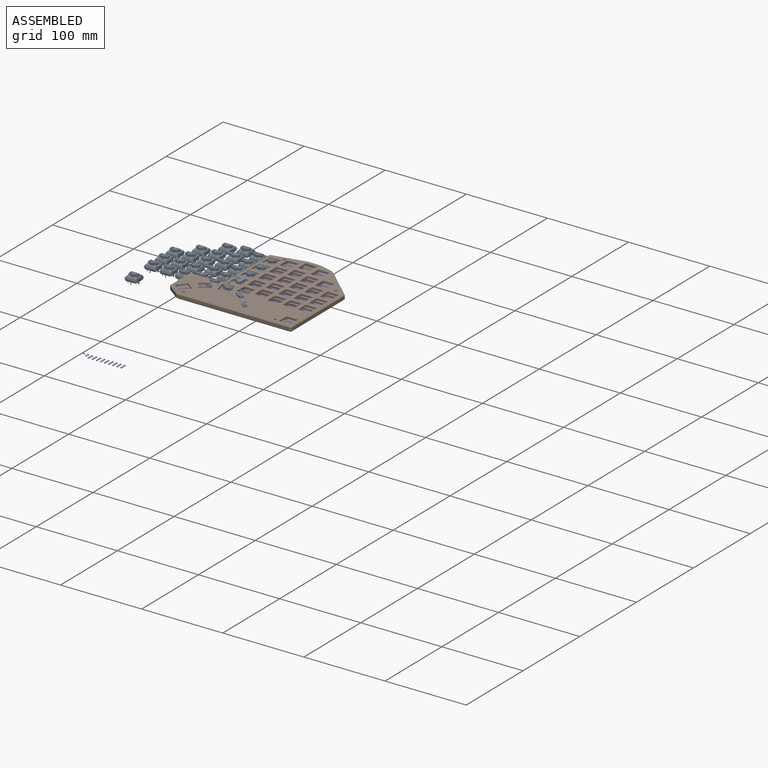
[diagram: assembled view]
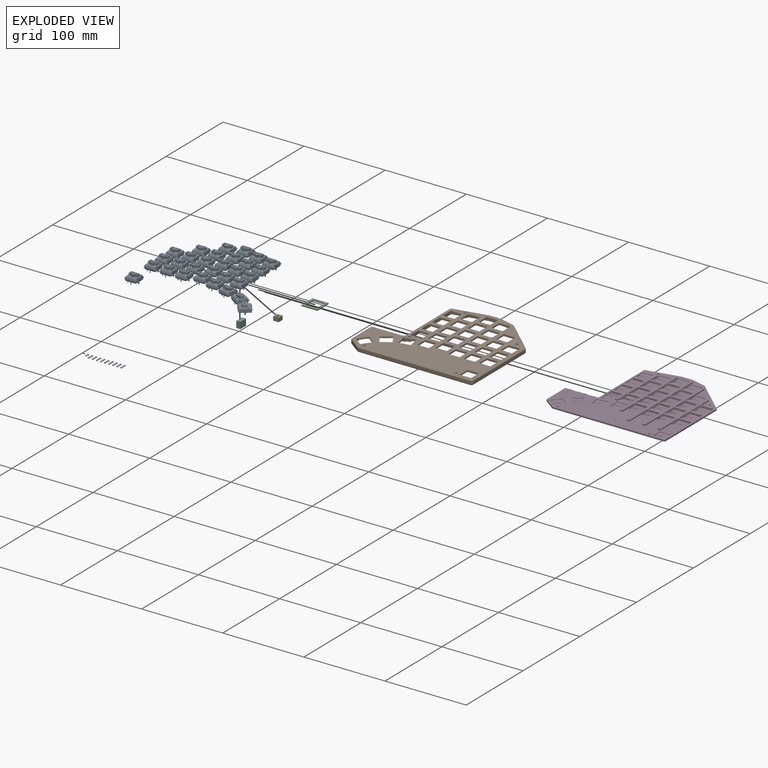
[diagram: exploded view]
GUIDED TOUR — FREECAD ASSEMBLY "grapto-v3"

This assembly has 6 components, labeled P0..P5 below (a component is one placed body or linked part; the same part can appear more than once), held together by 0 modeled joints plus 15 derived contact edges. A joint is a constraint between two components; its type names the relative motion it leaves free:
  CONTACT — a derived adjacency edge — the two components touch in the source model (clearance under 2% of the assembly's diagonal); it is measured from the geometry, not a modeled constraint.
Axis/direction vectors are unit vectors and 'through' points are millimeter coordinates, both in the assembly's world frame.

MATES
  1. CONTACT "contact_0_1": P0 <-> P1, contact direction (1.000, 0.000, 0.000) through (-4.25, -13.15, 1.79) mm (derived from contact, not a modeled constraint)
  2. CONTACT "contact_0_2": P0 <-> P2, contact direction (1.000, 0.000, 0.000) through (-0.58, 0.55, 0.03) mm (derived from contact, not a modeled constraint)
  3. CONTACT "contact_0_3": P0 <-> P3, contact direction (1.000, 0.000, 0.000) through (-7.07, 17.11, 0.85) mm (derived from contact, not a modeled constraint)
  4. CONTACT "contact_0_4": P0 <-> P4, contact direction (0.875, -0.485, -0.005) through (-0.88, -2.07, 4.93) mm (derived from contact, not a modeled constraint)
  5. CONTACT "contact_0_5": P0 <-> P5, contact direction (0.875, -0.485, -0.005) through (0.11, -2.00, 7.67) mm (derived from contact, not a modeled constraint)
  6. CONTACT "contact_1_2": P1 <-> P2, contact direction (0.000, 0.000, -1.000) through (12.95, 14.95, 2.55) mm (derived from contact, not a modeled constraint)
  7. CONTACT "contact_1_3": P1 <-> P3, contact direction (0.000, 0.000, -1.000) through (-33.68, -13.10, 1.80) mm (derived from contact, not a modeled constraint)
  8. CONTACT "contact_1_4": P1 <-> P4, contact direction (0.000, 0.000, 1.000) through (-3.96, -5.75, 4.40) mm (derived from contact, not a modeled constraint)
  9. CONTACT "contact_1_5": P1 <-> P5, contact direction (0.000, 0.000, 1.000) through (5.95, -5.95, 7.00) mm (derived from contact, not a modeled constraint)
  10. CONTACT "contact_2_3": P2 <-> P3, contact direction (0.000, 0.000, 1.000) through (0.55, 12.95, 1.22) mm (derived from contact, not a modeled constraint)
  11. CONTACT "contact_2_4": P2 <-> P4, contact direction (-0.485, -0.875, 0.004) through (-3.21, -3.21, 0.00) mm (derived from contact, not a modeled constraint)
  12. CONTACT "contact_2_5": P2 <-> P5, contact direction (-0.485, -0.875, 0.004) through (0.68, 0.00, 0.00) mm (derived from contact, not a modeled constraint)
  13. CONTACT "contact_3_4": P3 <-> P4, contact direction (0.000, 0.000, 1.000) through (-4.84, 4.31, 0.90) mm (derived from contact, not a modeled constraint)
  14. CONTACT "contact_3_5": P3 <-> P5, contact direction (-1.000, 0.000, 0.000) through (0.55, -5.95, 0.40) mm (derived from contact, not a modeled constraint)
  15. CONTACT "contact_4_5": P4 <-> P5, contact direction (1.000, 0.000, 0.000) through (0.24, 1.63, 0.50) mm (derived from contact, not a modeled constraint)

ASSEMBLY ORDER
  1. P0 — the base component [order verified]
  2. P4 [order verified]
  3. P5 [order verified]
  4. P2 [order verified]
  5. P1 [order verified]
  6. P3 [order verified]
(P1, P2, P3 verified with a relaxed clearance tolerance: the source model stores slight part interference there.)
Order-tag legend:
  [order verified] — this step's position reverses a verified removal order: the component was checked to insert without passing through the ones already placed.

Of the 6 components, 5 carry a construction recipe — the FreeCAD feature program (sketches with constraints, then the solid features that consume them) that regenerates the part from scratch, quoted from this document or from the linked companion document it references; the rest are supplied as boundary geometry only. The tour below walks the components in assembly order: each is shown spotlighted twice — in the assembled view, then in the exploded view, where a leader line traces a displaced component back to its assembled socket (components that stay in place when exploded have no leader line; saturated green if recipe-attached, orange if geometry-only; every other component desaturated gray) — followed by its recipe or geometry summary and the mates that hold it.
NOTE — document 2 of 2 of this assembly tour. The two overview renders and the header above are repeated from document 1; the component sections below continue where the previous document stopped.
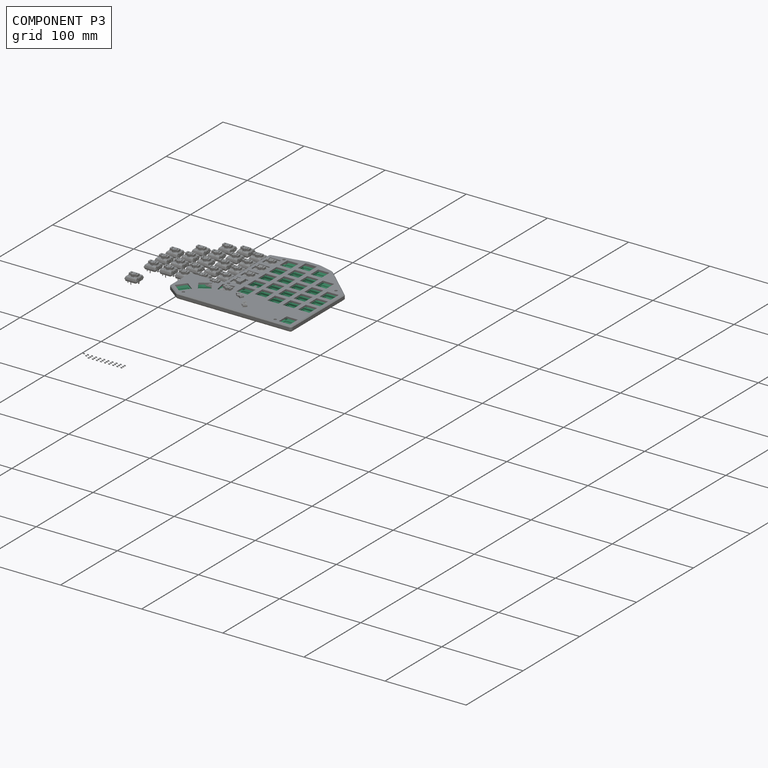
[diagram: component P3 — assembled]
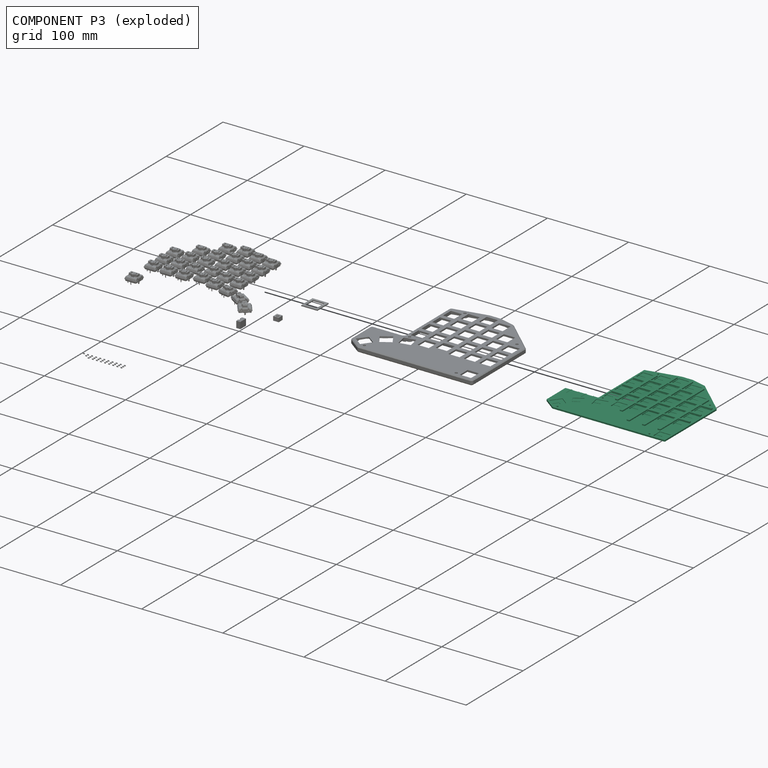
[diagram: component P3 — exploded]
COMPONENT P3 — recipe-attached ("bottom", modeled in this document).
Held by: resting contact with P0 (derived edge); resting contact with P1 (derived edge); resting contact with P2 (derived edge); resting contact with P4 (derived edge); resting contact with P5 (derived edge).
Construction recipe (the document's own serialized feature program — sketch geometry with constraints, then the solid features built on it; lengths are millimeters unless a unit is written):

FEATURE [Sketcher::SketchObject] Sketch028
  FullyConstrained = true
  MapMode = 5
  Support = -> [XY_Plane004]
  sketch-geometry (40):
    g0: LineSegment StartX=-9.1 StartY=-12.14 StartZ=0 EndX=-9.1 EndY=66.8376 EndZ=0
    g1: ArcOfCircle CenterX=-8.1 CenterY=66.8376 CenterZ=0 NormalX=0 NormalY=0 NormalZ=1 AngleXU=0 Radius=1 StartAngle=1.77949 EndAngle=3.14159
    g2: LineSegment StartX=-8.30718 StartY=67.8159 StartZ=0 EndX=31.2384 EndY=76.1905 EndZ=0
    g3: ArcOfCircle CenterX=31.4455 CenterY=75.2122 CenterZ=0 NormalX=0 NormalY=0 NormalZ=1 AngleXU=0 Radius=1 StartAngle=1.5708 EndAngle=1.77949
    g4: LineSegment StartX=31.4455 StartY=76.2122 StartZ=0 EndX=44.4728 EndY=76.2122 EndZ=0
    g5: ArcOfCircle CenterX=44.4728 CenterY=75.2122 CenterZ=0 NormalX=0 NormalY=0 NormalZ=1 AngleXU=0 Radius=1 StartAngle=1.31346 EndAngle=1.5708
    g6: LineSegment StartX=44.7273 StartY=76.1793 StartZ=0 EndX=62.5249 EndY=71.4955 EndZ=0
    g7: ArcOfCircle CenterX=62.2704 CenterY=70.5284 CenterZ=0 NormalX=0 NormalY=0 NormalZ=1 AngleXU=0 Radius=1 StartAngle=0.828313 EndAngle=1.31346
    g8: LineSegment StartX=62.9465 StartY=71.2652 StartZ=0 EndX=103.776 EndY=33.798 EndZ=0
    g9: LineSegment StartX=104.1 StartY=33.0612 StartZ=0 EndX=104.1 EndY=-56.9382 EndZ=0
    g10: ArcOfCircle CenterX=103.1 CenterY=-56.9382 CenterZ=0 NormalX=0 NormalY=0 NormalZ=1 AngleXU=0 Radius=1 StartAngle=4.71239 EndAngle=6.28319
    g11: LineSegment StartX=-34.6692 StartY=-57.7362 StartZ=0 EndX=-49.3388 EndY=-46.6574 EndZ=0
    g12: ArcOfCircle CenterX=-48.7361 CenterY=-45.8594 CenterZ=0 NormalX=0 NormalY=0 NormalZ=1 AngleXU=0 Radius=1 StartAngle=3.14159 EndAngle=4.06555
    g13: LineSegment StartX=-49.7361 StartY=-45.8594 StartZ=0 EndX=-49.7361 EndY=-14.14 EndZ=0
    g14: LineSegment StartX=-48.7361 StartY=-13.14 StartZ=0 EndX=-42.925 EndY=-13.14 EndZ=0
    g15: ArcOfCircle CenterX=103.1 CenterY=33.0612 CenterZ=0 NormalX=0 NormalY=0 NormalZ=1 AngleXU=0 Radius=1 StartAngle=-2.7e-15 EndAngle=0.828313
    g16: LineSegment StartX=103.1 StartY=-57.9382 StartZ=0 EndX=-34.0665 EndY=-57.9382 EndZ=0
    g17: ArcOfCircle CenterX=-34.0665 CenterY=-56.9382 CenterZ=0 NormalX=0 NormalY=0 NormalZ=1 AngleXU=0 Radius=1 StartAngle=4.06555 EndAngle=4.71239
    g18: LineSegment StartX=106.399 StartY=-60.2382 StartZ=0 EndX=106.4 EndY=34.5118 EndZ=0
    g19: LineSegment StartX=106.4 StartY=34.5118 StartZ=0 EndX=63.8999 EndY=73.512 EndZ=0
    g20: LineSegment StartX=63.8999 StartY=73.512 StartZ=0 EndX=44.8999 EndY=78.5122 EndZ=0
    g21: LineSegment StartX=44.8999 StartY=78.5122 StartZ=0 EndX=31.0999 EndY=78.5122 EndZ=0
    g22: LineSegment StartX=31.0999 StartY=78.5122 StartZ=0 EndX=-11.4 EndY=69.5119 EndZ=0
    g23: LineSegment StartX=-11.4 StartY=69.5119 StartZ=0 EndX=-11.4 EndY=-11.44 EndZ=0
    g24: LineSegment StartX=-11.4 StartY=-11.44 StartZ=0 EndX=-52.0361 EndY=-11.44 EndZ=0
    g25: LineSegment StartX=-52.0361 StartY=-11.44 StartZ=0 EndX=-52.0361 EndY=-47.5025 EndZ=0
    g26: LineSegment StartX=-52.0361 StartY=-47.5025 StartZ=0 EndX=-35.1726 EndY=-60.2382 EndZ=0
    g27: LineSegment StartX=-35.1726 StartY=-60.2382 StartZ=0 EndX=106.399 EndY=-60.2382 EndZ=0
    g28: ArcOfCircle CenterX=-10.1 CenterY=-12.14 CenterZ=0 NormalX=0 NormalY=0 NormalZ=1 AngleXU=0 Radius=1 StartAngle=4.71239 EndAngle=6.28319
    g29: ArcOfCircle CenterX=-48.7361 CenterY=-14.14 CenterZ=0 NormalX=0 NormalY=0 NormalZ=1 AngleXU=0 Radius=1 StartAngle=1.5708 EndAngle=3.14159
    g30: LineSegment StartX=-33.825 StartY=-13.14 StartZ=0 EndX=-33.825 EndY=-11.64 EndZ=0
    g31: LineSegment StartX=-33.825 StartY=-11.64 StartZ=0 EndX=-42.925 EndY=-11.64 EndZ=0
    g32: LineSegment StartX=-42.925 StartY=-11.64 StartZ=0 EndX=-42.925 EndY=-13.14 EndZ=0
    g33: LineSegment StartX=-15.825 StartY=-13.14 StartZ=0 EndX=-15.825 EndY=-11.64 EndZ=0
    g34: LineSegment StartX=-15.825 StartY=-11.64 StartZ=0 EndX=-24.925 EndY=-11.64 EndZ=0
    g35: LineSegment StartX=-24.925 StartY=-11.64 StartZ=0 EndX=-24.925 EndY=-13.14 EndZ=0
    g36: LineSegment StartX=-33.825 StartY=-13.14 StartZ=0 EndX=-24.925 EndY=-13.14 EndZ=0
    g37: LineSegment StartX=-15.825 StartY=-13.14 StartZ=0 EndX=-10.1 EndY=-13.14 EndZ=0
    g38: GeomPoint X=-20.375 Y=-11.64 Z=0
    g39: GeomPoint X=-38.375 Y=-11.64 Z=0
  constraints (105):
    c: Vertical(g0)
    c: Tangent(g0,g1) = 1.5708
    c: Tangent(g2,g3) = 1.5708
    c: Horizontal(g4)
    c: Tangent(g4,g5) = 1.5708
    c: Tangent(g6,g7) = 1.5708
    c: Vertical(g9)
    c: Tangent(g9,g10) = 1.5708
    c: Tangent(g11,g12) = 1.5708
    c: Vertical(g13)
    c: Horizontal(g14)
    c: Tangent(g12,g13) = 1.5708
    c: Tangent(g3,g4) = 1.5708
    c: Tangent(g5,g6) = 1.5708
    c: Tangent(g7,g8) = 1.5708
    c: Tangent(g9,g15) = 1.5708
    c: Tangent(g11,g17) = 1.5708
    c: Diameter(g17) = 2
    c: Equal(g17,g12)
    c: Equal(g17,g1)
    c: Equal(g17,g3)
    c: Equal(g17,g5)
    c: Equal(g17,g7)
    c: Equal(g17,g15)
    c: Equal(g17,g10)
    c: Coincident(g18,g19)
    c: Coincident(g19,g20)
    c: Coincident(g20,g21)
    c: Coincident(g21,g22)
    c: Coincident(g22,g23)
    c: Coincident(g23,g24)
    c: Coincident(g24,g25)
    c: Coincident(g25,g26)
    c: Coincident(g26,g27)
    c: Coincident(g27,g18)
    c: Distance(g18) = 94.75
    c: Distance(g19) = 57.6823
    c: Distance(g20) = 19.6469
    c: Distance(g21) = 13.8
    c: Distance(g22) = 43.4425
    c: Distance(g23) = 80.9519
    c: Distance(g24) = 40.6361
    c: Distance(g25) = 36.0625
    c: Distance(g26) = 21.1323
    c: Angle(g19,g18) = 2.31328
    c: Angle(g21,g20) = 2.88426
    c: Angle(g20,g19) = 2.65644
    c: Angle(g23,g22) = 1.77949
    c: Angle(g26,g25) = 2.21763
    c: Angle(g27,g26) = 2.49476
    c: DistanceX(g23,g-1) = 11.4
    c: DistanceY(g23,g-1) = 11.44
    c: Horizontal(g24)
    c: Vertical(g25)
    c: Distance(g11,g26) = 2.3
    c: Distance(g16,g27) = 2.3
    c: Distance(g0,g23) = 2.3
    c: Distance(g1,g22) = 2.3
    c: Parallel(g2,g22)
    c: Distance(g3,g21) = 2.3
    c: Distance(g5,g20) = 2.3
    c: Parallel(g6,g20)
    c: Distance(g7,g19) = 2.3
    c: Parallel(g8,g19)
    c: Distance(g9,g18) = 2.3
    c: Parallel(g11,g26)
    c: Horizontal(g16)
    c: Tangent(g16,g10) = 1.5708
    c: Tangent(g17,g16) = 1.5708
    c: Tangent(g15,g8) = 1.5708
    c: Tangent(g2,g1) = 1.5708
    c: Vertical(g23)
    c: Tangent(g0,g28) = -1.5708
    c: Tangent(g13,g29) = 1.5708
    c: Tangent(g14,g29) = 1.5708
    c: Diameter(g29) = 2
    c: DistanceX(g24,g13) = 2.3
    c: Distance(g14,g24) = 1.7
    c: Diameter(g28) = 2
    c: Coincident(g30,g31)
    c: Coincident(g31,g32)
    c: Horizontal(g31)
    c: Vertical(g30)
    c: Vertical(g32)
    c: Coincident(g33,g34)
    c: Coincident(g34,g35)
    c: Horizontal(g34)
    c: Vertical(g33)
    c: Vertical(g35)
    c: PointOnObject(g35,g14)
    c: Tangent(g14,g36)
    c: PointOnObject(g36,g35)
    c: Coincident(g37,g33)
    c: Tangent(g36,g37)
    c: Symmetric(g34,g33,g38)
    c: Symmetric(g30,g31,g39)
    c: DistanceX(g38,g-1) = 20.375
    c: DistanceX(g39,g38) = 18
    c: DistanceY(g33,g33) = 1.5
    c: Equal(g30,g33)
    c: Coincident(g30,g36)
    c: Equal(g31,g34)
    c: Distance(g34) = 9.1
    c: Coincident(g14,g32)
    c: Tangent(g37,g28) = -1.5708
FEATURE [PartDesign::Pad] Pad002
  Direction = (1,1,1)
  Length = 1.8
  Length2 = 100
  Profile = -> Sketch028
  Type = 0
  expr: Length = <<ss>>.bottom_height
FEATURE [Sketcher::SketchObject] Sketch029
  FullyConstrained = true
  MapMode = 5
  Placement = pos=(0,0,0) rot=(1,0,0;1.5708rad)
  Support = -> [XZ_Plane004]
  expr: Constraints[18] = <<ss>>.top_height - <<ss>>.sw_ht_above_pcb - 0.6 + 0.85
  expr: Constraints[15] = <<ss>>.top_height - <<ss>>.sw_ht_above_pcb - 0.6 + 0.85
  sketch-geometry (10):
    g0: ArcOfCircle CenterX=-17.28 CenterY=2.4 CenterZ=0 NormalX=0 NormalY=0 NormalZ=1 AngleXU=0 Radius=1.65 StartAngle=4.71239 EndAngle=7.85398
    g1: ArcOfCircle CenterX=-23.48 CenterY=2.4 CenterZ=0 NormalX=0 NormalY=0 NormalZ=1 AngleXU=0 Radius=1.65 StartAngle=1.5708 EndAngle=4.71239
    g2: LineSegment StartX=-17.28 StartY=4.05 StartZ=0 EndX=-23.48 EndY=4.05 EndZ=0
    g3: ArcOfCircle CenterX=-35.28 CenterY=2.4 CenterZ=0 NormalX=0 NormalY=0 NormalZ=1 AngleXU=0 Radius=1.65 StartAngle=4.71239 EndAngle=7.85398
    g4: ArcOfCircle CenterX=-41.48 CenterY=2.4 CenterZ=0 NormalX=0 NormalY=0 NormalZ=1 AngleXU=0 Radius=1.65 StartAngle=1.5708 EndAngle=4.71239
    g5: LineSegment StartX=-35.28 StartY=4.05 StartZ=0 EndX=-41.48 EndY=4.05 EndZ=0
    g6: GeomPoint X=-20.38 Y=4.05 Z=0
    g7: GeomPoint X=-38.38 Y=4.05 Z=0
    g8: LineSegment StartX=-35.28 StartY=0.75 StartZ=0 EndX=-41.48 EndY=0.75 EndZ=0
    g9: LineSegment StartX=-17.28 StartY=0.75 StartZ=0 EndX=-23.48 EndY=0.75 EndZ=0
  constraints (22):
    c: Tangent(g0,g2) = -1.5708
    c: Tangent(g2,g1) = -1.5708
    c: Horizontal(g2)
    c: Equal(g0,g1)
    c: Tangent(g3,g5) = -1.5708
    c: Tangent(g5,g4) = -1.5708
    c: Horizontal(g5)
    c: Equal(g3,g4)
    c: Equal(g5,g2)
    c: Diameter(g3) = 3.3
    c: Equal(g3,g1)
    c: Symmetric(g1,g0,g6)
    c: Symmetric(g4,g3,g7)
    c: DistanceX(g7,g6) = 18
    c: DistanceX(g6,g-1) = 20.38
    c: DistanceY(g-1,g6) = 4.05
    c: Tangent(g8,g4) = 1.5708
    c: Tangent(g8,g3) = 1.5708
    c: DistanceY(g-1,g7) = 4.05
    c: Tangent(g9,g1) = 1.5708
    c: Tangent(g9,g0) = 1.5708
    c: Distance(g9) = 6.2
FEATURE [PartDesign::Pocket] Pocket008
  BaseFeature = -> Pad002
  Length = 22
  Length2 = 100
  Profile = -> Sketch029
  Reversed = true
  Type = 0
FEATURE [PartDesign::ShapeBinder] ShapeBinder
  Support = -> [Chamfer]
  TraceSupport = true
FEATURE [Sketcher::SketchObject] Sketch030
  FullyConstrained = false
  MapMode = 5
  Support = -> [XY_Plane004]
  sketch-geometry (5):
    g0: Circle CenterX=8.1652 CenterY=67.4137 CenterZ=0 NormalX=0 NormalY=0 NormalZ=1 AngleXU=0 Radius=1
    g1: Circle CenterX=93.6217 CenterY=36.8767 CenterZ=0 NormalX=0 NormalY=0 NormalZ=1 AngleXU=0 Radius=1
    g2: Circle CenterX=82.6217 CenterY=-54.3793 CenterZ=0 NormalX=0 NormalY=0 NormalZ=1 AngleXU=0 Radius=1
    g3: Circle CenterX=-30.9626 CenterY=-53.8793 CenterZ=0 NormalX=0 NormalY=0 NormalZ=1 AngleXU=0 Radius=1
    g4: Circle CenterX=-5.37107 CenterY=-10.94 CenterZ=0 NormalX=0 NormalY=0 NormalZ=1 AngleXU=0 Radius=1
  constraints (5):
    c: Diameter(g3) = 2
    c: Equal(g3,g4)
    c: Equal(g3,g0)
    c: Equal(g3,g1)
    c: Equal(g3,g2)
FEATURE [PartDesign::Hole] Hole
  BaseFeature = -> Pocket008
  Depth = 25
  DepthType = 0
  Diameter = 2.2
  DrillForDepth = false
  DrillPoint = 1
  DrillPointAngle = 118
  HoleCutCountersinkAngle = 90
  HoleCutCustomValues = false
  HoleCutDepth = 1
  HoleCutDiameter = 4.5
  HoleCutType = 2
  ModelActualThread = false
  Profile = -> Sketch030
  Reversed = true
  Tapered = false
  TaperedAngle = 90
  ThreadAngle = 0
  ThreadClass = 0
  ThreadCutOffInner = 0
  ThreadCutOffOuter = 0
  ThreadDirection = 0
  ThreadFit = 0
  ThreadPitch = 0
  ThreadSize = 0
  ThreadType = 0
  Threaded = false
FEATURE [PartDesign::Plane] DatumPlane001
  AttachmentOffset = pos=(0,0,1.8) rot=(0,0,1;0rad)
  Length = 182.567
  MapMode = 5
  Placement = pos=(0,0,1.8) rot=(0,0,1;0rad)
  ResizeMode = 0
  Support = -> [XY_Plane004]
  Width = 162.882
FEATURE [Sketcher::SketchObject] Sketch031  label="SketchTop001"
  FullyConstrained = true
  MapMode = 5
  Placement = pos=(0,0,1.8) rot=(0,0,1;0rad)
  Support = -> [DatumPlane001]
  expr: Constraints[420] = <<ss>>.ss_sw_side / 2
  expr: Constraints[347] = <<ss>>.ss_sw_sep - 12
  expr: Constraints[376] = <<ss>>.ss_sw_side
  expr: Constraints[384] = 6 - (<<ss>>.ss_sw_side - 12) / 2
  expr: Constraints[377] = 12
  sketch-geometry (153):
    g0: LineSegment StartX=-6.9 StartY=-6.9 StartZ=0 EndX=6.9 EndY=-6.9 EndZ=0
    g1: LineSegment StartX=-6.9 StartY=-6.9 StartZ=0 EndX=-6.9 EndY=5.1 EndZ=0
    g2: LineSegment StartX=-6.9 StartY=5.1 StartZ=0 EndX=6.9 EndY=5.1 EndZ=0
    g3: LineSegment StartX=6.9 StartY=-6.9 StartZ=0 EndX=6.9 EndY=5.1 EndZ=0
    g4: LineSegment StartX=-6.9 StartY=12.1 StartZ=0 EndX=6.9 EndY=12.1 EndZ=0
    g5: LineSegment StartX=-6.9 StartY=12.1 StartZ=0 EndX=-6.9 EndY=24.1 EndZ=0
    g6: LineSegment StartX=-6.9 StartY=24.1 StartZ=0 EndX=6.9 EndY=24.1 EndZ=0
    g7: LineSegment StartX=6.9 StartY=12.1 StartZ=0 EndX=6.9 EndY=24.1 EndZ=0
    g8: LineSegment StartX=-6.9 StartY=31.1 StartZ=0 EndX=6.9 EndY=31.1 EndZ=0
    g9: LineSegment StartX=-6.9 StartY=31.1 StartZ=0 EndX=-6.9 EndY=43.1 EndZ=0
    g10: LineSegment StartX=-6.9 StartY=43.1 StartZ=0 EndX=6.9 EndY=43.1 EndZ=0
    g11: LineSegment StartX=6.9 StartY=31.1 StartZ=0 EndX=6.9 EndY=43.1 EndZ=0
    g12: LineSegment StartX=-6.9 StartY=50.1 StartZ=0 EndX=6.9 EndY=50.1 EndZ=0
    g13: LineSegment StartX=-6.9 StartY=50.1 StartZ=0 EndX=-6.9 EndY=62.1 EndZ=0
    g14: LineSegment StartX=-6.9 StartY=62.1 StartZ=0 EndX=6.9 EndY=62.1 EndZ=0
    g15: LineSegment StartX=6.9 StartY=50.1 StartZ=0 EndX=6.9 EndY=62.1 EndZ=0
    g16: LineSegment StartX=12.1 StartY=-21.9 StartZ=0 EndX=25.9 EndY=-21.9 EndZ=0
    g17: LineSegment StartX=12.1 StartY=-21.9 StartZ=0 EndX=12.1 EndY=-9.9 EndZ=0
    g18: LineSegment StartX=12.1 StartY=-9.9 StartZ=0 EndX=25.9 EndY=-9.9 EndZ=0
    g19: LineSegment StartX=25.9 StartY=-21.9 StartZ=0 EndX=25.9 EndY=-9.9 EndZ=0
    g20: LineSegment StartX=12.1 StartY=-2.9 StartZ=0 EndX=25.9 EndY=-2.9 EndZ=0
    g21: LineSegment StartX=12.1 StartY=-2.9 StartZ=0 EndX=12.1 EndY=9.1 EndZ=0
    g22: LineSegment StartX=12.1 StartY=9.1 StartZ=0 EndX=25.9 EndY=9.1 EndZ=0
    g23: LineSegment StartX=25.9 StartY=-2.9 StartZ=0 EndX=25.9 EndY=9.1 EndZ=0
    g24: LineSegment StartX=12.1 StartY=16.1 StartZ=0 EndX=25.9 EndY=16.1 EndZ=0
    g25: LineSegment StartX=12.1 StartY=16.1 StartZ=0 EndX=12.1 EndY=28.1 EndZ=0
    g26: LineSegment StartX=12.1 StartY=28.1 StartZ=0 EndX=25.9 EndY=28.1 EndZ=0
    g27: LineSegment StartX=25.9 StartY=16.1 StartZ=0 EndX=25.9 EndY=28.1 EndZ=0
    g28: LineSegment StartX=12.1 StartY=35.1 StartZ=0 EndX=25.9 EndY=35.1 EndZ=0
    g29: LineSegment StartX=12.1 StartY=35.1 StartZ=0 EndX=12.1 EndY=47.1 EndZ=0
    g30: LineSegment StartX=12.1 StartY=47.1 StartZ=0 EndX=25.9 EndY=47.1 EndZ=0
    g31: LineSegment StartX=25.9 StartY=35.1 StartZ=0 EndX=25.9 EndY=47.1 EndZ=0
    g32: LineSegment StartX=12.1 StartY=54.1 StartZ=0 EndX=25.9 EndY=54.1 EndZ=0
    g33: LineSegment StartX=12.1 StartY=54.1 StartZ=0 EndX=12.1 EndY=66.1 EndZ=0
    g34: LineSegment StartX=12.1 StartY=66.1 StartZ=0 EndX=25.9 EndY=66.1 EndZ=0
    g35: LineSegment StartX=25.9 StartY=54.1 StartZ=0 EndX=25.9 EndY=66.1 EndZ=0
    g36: LineSegment StartX=31.1 StartY=-16.9 StartZ=0 EndX=44.9 EndY=-16.9 EndZ=0
    g37: LineSegment StartX=31.1 StartY=-16.9 StartZ=0 EndX=31.1 EndY=-4.9 EndZ=0
    g38: LineSegment StartX=31.1 StartY=-4.9 StartZ=0 EndX=44.9 EndY=-4.9 EndZ=0
    g39: LineSegment StartX=44.9 StartY=-16.9 StartZ=0 EndX=44.9 EndY=-4.9 EndZ=0
    g40: LineSegment StartX=31.1 StartY=2.1 StartZ=0 EndX=44.9 EndY=2.1 EndZ=0
    g41: LineSegment StartX=31.1 StartY=2.1 StartZ=0 EndX=31.1 EndY=14.1 EndZ=0
    g42: LineSegment StartX=31.1 StartY=14.1 StartZ=0 EndX=44.9 EndY=14.1 EndZ=0
    g43: LineSegment StartX=44.9 StartY=2.1 StartZ=0 EndX=44.9 EndY=14.1 EndZ=0
    g44: LineSegment StartX=31.1 StartY=21.1 StartZ=0 EndX=44.9 EndY=21.1 EndZ=0
    g45: LineSegment StartX=31.1 StartY=21.1 StartZ=0 EndX=31.1 EndY=33.1 EndZ=0
    g46: LineSegment StartX=31.1 StartY=33.1 StartZ=0 EndX=44.9 EndY=33.1 EndZ=0
    g47: LineSegment StartX=44.9 StartY=21.1 StartZ=0 EndX=44.9 EndY=33.1 EndZ=0
    g48: LineSegment StartX=31.1 StartY=40.1 StartZ=0 EndX=44.9 EndY=40.1 EndZ=0
    g49: LineSegment StartX=31.1 StartY=40.1 StartZ=0 EndX=31.1 EndY=52.1 EndZ=0
    g50: LineSegment StartX=31.1 StartY=52.1 StartZ=0 EndX=44.9 EndY=52.1 EndZ=0
    g51: LineSegment StartX=44.9 StartY=40.1 StartZ=0 EndX=44.9 EndY=52.1 EndZ=0
    g52: LineSegment StartX=31.1 StartY=59.1 StartZ=0 EndX=44.9 EndY=59.1 EndZ=0
    g53: LineSegment StartX=31.1 StartY=59.1 StartZ=0 EndX=31.1 EndY=71.1 EndZ=0
    g54: LineSegment StartX=31.1 StartY=71.1 StartZ=0 EndX=44.9 EndY=71.1 EndZ=0
    g55: LineSegment StartX=44.9 StartY=59.1 StartZ=0 EndX=44.9 EndY=71.1 EndZ=0
    g56: LineSegment StartX=50.1 StartY=-21.9 StartZ=0 EndX=63.9 EndY=-21.9 EndZ=0
    g57: LineSegment StartX=50.1 StartY=-21.9 StartZ=0 EndX=50.1 EndY=-9.9 EndZ=0
    g58: LineSegment StartX=50.1 StartY=-9.9 StartZ=0 EndX=63.9 EndY=-9.9 EndZ=0
    g59: LineSegment StartX=63.9 StartY=-21.9 StartZ=0 EndX=63.9 EndY=-9.9 EndZ=0
    g60: LineSegment StartX=50.1 StartY=-2.9 StartZ=0 EndX=63.9 EndY=-2.9 EndZ=0
    g61: LineSegment StartX=50.1 StartY=-2.9 StartZ=0 EndX=50.1 EndY=9.1 EndZ=0
    g62: LineSegment StartX=50.1 StartY=9.1 StartZ=0 EndX=63.9 EndY=9.1 EndZ=0
    g63: LineSegment StartX=63.9 StartY=-2.9 StartZ=0 EndX=63.9 EndY=9.1 EndZ=0
    g64: LineSegment StartX=50.1 StartY=16.1 StartZ=0 EndX=63.9 EndY=16.1 EndZ=0
    g65: LineSegment StartX=50.1 StartY=16.1 StartZ=0 EndX=50.1 EndY=28.1 EndZ=0
    g66: LineSegment StartX=50.1 StartY=28.1 StartZ=0 EndX=63.9 EndY=28.1 EndZ=0
    g67: LineSegment StartX=63.9 StartY=16.1 StartZ=0 EndX=63.9 EndY=28.1 EndZ=0
    g68: LineSegment StartX=50.1 StartY=35.1 StartZ=0 EndX=63.9 EndY=35.1 EndZ=0
    g69: LineSegment StartX=50.1 StartY=35.1 StartZ=0 EndX=50.1 EndY=47.1 EndZ=0
    g70: LineSegment StartX=50.1 StartY=47.1 StartZ=0 EndX=63.9 EndY=47.1 EndZ=0
    g71: LineSegment StartX=63.9 StartY=35.1 StartZ=0 EndX=63.9 EndY=47.1 EndZ=0
    g72: LineSegment StartX=50.1 StartY=54.1 StartZ=0 EndX=63.9 EndY=54.1 EndZ=0
    g73: LineSegment StartX=50.1 StartY=54.1 StartZ=0 EndX=50.1 EndY=66.1 EndZ=0
    g74: LineSegment StartX=50.1 StartY=66.1 StartZ=0 EndX=63.9 EndY=66.1 EndZ=0
    g75: LineSegment StartX=63.9 StartY=54.1 StartZ=0 EndX=63.9 EndY=66.1 EndZ=0
    g76: LineSegment StartX=69.1 StartY=-21.9 StartZ=0 EndX=82.9 EndY=-21.9 EndZ=0
    g77: LineSegment StartX=69.1 StartY=-21.9 StartZ=0 EndX=69.1 EndY=-9.9 EndZ=0
    g78: LineSegment StartX=69.1 StartY=-9.9 StartZ=0 EndX=82.9 EndY=-9.9 EndZ=0
    g79: LineSegment StartX=82.9 StartY=-21.9 StartZ=0 EndX=82.9 EndY=-9.9 EndZ=0
    g80: LineSegment StartX=69.1 StartY=-2.9 StartZ=0 EndX=82.9 EndY=-2.9 EndZ=0
    g81: LineSegment StartX=69.1 StartY=-2.9 StartZ=0 EndX=69.1 EndY=9.1 EndZ=0
    g82: LineSegment StartX=69.1 StartY=9.1 StartZ=0 EndX=82.9 EndY=9.1 EndZ=0
    g83: LineSegment StartX=82.9 StartY=-2.9 StartZ=0 EndX=82.9 EndY=9.1 EndZ=0
    g84: LineSegment StartX=69.1 StartY=16.1 StartZ=0 EndX=82.9 EndY=16.1 EndZ=0
    g85: LineSegment StartX=69.1 StartY=16.1 StartZ=0 EndX=69.1 EndY=28.1 EndZ=0
    g86: LineSegment StartX=69.1 StartY=28.1 StartZ=0 EndX=82.9 EndY=28.1 EndZ=0
    g87: LineSegment StartX=82.9 StartY=16.1 StartZ=0 EndX=82.9 EndY=28.1 EndZ=0
    g88: LineSegment StartX=69.1 StartY=35.1 StartZ=0 EndX=82.9 EndY=35.1 EndZ=0
    g89: LineSegment StartX=69.1 StartY=35.1 StartZ=0 EndX=69.1 EndY=47.1 EndZ=0
    g90: LineSegment StartX=69.1 StartY=47.1 StartZ=0 EndX=82.9 EndY=47.1 EndZ=0
    g91: LineSegment StartX=82.9 StartY=35.1 StartZ=0 EndX=82.9 EndY=47.1 EndZ=0
    g92: LineSegment StartX=88.1 StartY=-2.9 StartZ=0 EndX=101.9 EndY=-2.9 EndZ=0
    g93: LineSegment StartX=88.1 StartY=-2.9 StartZ=0 EndX=88.1 EndY=9.1 EndZ=0
    g94: LineSegment StartX=88.1 StartY=9.1 StartZ=0 EndX=101.9 EndY=9.1 EndZ=0
    g95: LineSegment StartX=101.9 StartY=-2.9 StartZ=0 EndX=101.9 EndY=9.1 EndZ=0
    g96: LineSegment StartX=88.1 StartY=16.1 StartZ=0 EndX=101.9 EndY=16.1 EndZ=0
    g97: LineSegment StartX=88.1 StartY=16.1 StartZ=0 EndX=88.1 EndY=28.1 EndZ=0
    g98: LineSegment StartX=88.1 StartY=28.1 StartZ=0 EndX=101.9 EndY=28.1 EndZ=0
    g99: LineSegment StartX=101.9 StartY=16.1 StartZ=0 EndX=101.9 EndY=28.1 EndZ=0
    g100: LineSegment StartX=-8.85468 StartY=-17.2151 StartZ=0 EndX=4.66828 EndY=-14.4638 EndZ=0
    g101: LineSegment StartX=4.66828 StartY=-14.4638 StartZ=0 EndX=7.0607 EndY=-26.2229 EndZ=0
    g102: LineSegment StartX=7.0607 StartY=-26.2229 StartZ=0 EndX=-6.46226 EndY=-28.9742 EndZ=0
    g103: LineSegment StartX=-6.46226 StartY=-28.9742 StartZ=0 EndX=-8.85468 EndY=-17.2151 EndZ=0
    g104: LineSegment StartX=-30.1502 StartY=-28.4325 StartZ=0 EndX=-18.4753 EndY=-21.0748 EndZ=0
    g105: LineSegment StartX=-18.4753 StartY=-21.0748 StartZ=0 EndX=-12.0773 EndY=-31.2269 EndZ=0
    g106: LineSegment StartX=-12.0773 StartY=-31.2269 StartZ=0 EndX=-23.7522 EndY=-38.5846 EndZ=0
    g107: LineSegment StartX=-23.7522 StartY=-38.5846 StartZ=0 EndX=-30.1502 EndY=-28.4325 EndZ=0
    g108: LineSegment StartX=-46.0997 StartY=-46.4586 StartZ=0 EndX=-37.7831 EndY=-35.4462 EndZ=0
    g109: LineSegment StartX=-37.7831 StartY=-35.4462 StartZ=0 EndX=-28.2071 EndY=-42.6781 EndZ=0
    g110: LineSegment StartX=-28.2071 StartY=-42.6781 StartZ=0 EndX=-36.5237 EndY=-53.6905 EndZ=0
    g111: LineSegment StartX=-36.5237 StartY=-53.6905 StartZ=0 EndX=-46.0997 EndY=-46.4586 EndZ=0
    g112: LineSegment StartX=88.1 StartY=-9.9 StartZ=0 EndX=101.9 EndY=-9.9 EndZ=0
    g113: LineSegment StartX=101.9 StartY=-9.9 StartZ=0 EndX=101.9 EndY=-21.9 EndZ=0
    g114: LineSegment StartX=101.9 StartY=-21.9 StartZ=0 EndX=88.1 EndY=-21.9 EndZ=0
    g115: LineSegment StartX=88.1 StartY=-21.9 StartZ=0 EndX=88.1 EndY=-9.9 EndZ=0
    g116: LineSegment StartX=88.1 StartY=-43.9 StartZ=0 EndX=101.9 EndY=-43.9 EndZ=0
    g117: LineSegment StartX=101.9 StartY=-43.9 StartZ=0 EndX=101.9 EndY=-55.9 EndZ=0
    g118: LineSegment StartX=101.9 StartY=-55.9 StartZ=0 EndX=88.1 EndY=-55.9 EndZ=0
    g119: LineSegment StartX=88.1 StartY=-55.9 StartZ=0 EndX=88.1 EndY=-43.9 EndZ=0
    g120: LineSegment StartX=88.1 StartY=-21.9 StartZ=0 EndX=88.1 EndY=-43.9 EndZ=0
    g121: LineSegment StartX=-6.9 StartY=5.1 StartZ=0 EndX=-6.9 EndY=12.1 EndZ=0
    g122: LineSegment StartX=-6.9 StartY=24.1 StartZ=0 EndX=-6.9 EndY=31.1 EndZ=0
    g123: LineSegment StartX=-6.9 StartY=50.1 StartZ=0 EndX=-6.9 EndY=43.1 EndZ=0
    g124: LineSegment StartX=12.1 StartY=54.1 StartZ=0 EndX=12.1 EndY=47.1 EndZ=0
    g125: LineSegment StartX=12.1 StartY=28.1 StartZ=0 EndX=12.1 EndY=35.1 EndZ=0
    g126: LineSegment StartX=12.1 StartY=9.1 StartZ=0 EndX=12.1 EndY=16.1 EndZ=0
    g127: LineSegment StartX=12.1 StartY=-9.9 StartZ=0 EndX=12.1 EndY=-2.9 EndZ=0
    g128: LineSegment StartX=31.1 StartY=-4.9 StartZ=0 EndX=31.1 EndY=2.1 EndZ=0
    g129: LineSegment StartX=31.1 StartY=14.1 StartZ=0 EndX=31.1 EndY=21.1 EndZ=0
    g130: LineSegment StartX=31.1 StartY=33.1 StartZ=0 EndX=31.1 EndY=40.1 EndZ=0
    g131: LineSegment StartX=31.1 StartY=52.1 StartZ=0 EndX=31.1 EndY=59.1 EndZ=0
    g132: LineSegment StartX=50.1 StartY=-9.9 StartZ=0 EndX=50.1 EndY=-2.9 EndZ=0
    g133: LineSegment StartX=50.1 StartY=9.1 StartZ=0 EndX=50.1 EndY=16.1 EndZ=0
    g134: LineSegment StartX=50.1 StartY=28.1 StartZ=0 EndX=50.1 EndY=35.1 EndZ=0
    g135: LineSegment StartX=50.1 StartY=47.1 StartZ=0 EndX=50.1 EndY=54.1 EndZ=0
    g136: LineSegment StartX=69.1 StartY=-9.9 StartZ=0 EndX=69.1 EndY=-2.9 EndZ=0
    g137: LineSegment StartX=69.1 StartY=9.1 StartZ=0 EndX=69.1 EndY=16.1 EndZ=0
    g138: LineSegment StartX=69.1 StartY=28.1 StartZ=0 EndX=69.1 EndY=35.1 EndZ=0
    g139: LineSegment StartX=88.1 StartY=-9.9 StartZ=0 EndX=88.1 EndY=-2.9 EndZ=0
    g140: LineSegment StartX=88.1 StartY=9.1 StartZ=0 EndX=88.1 EndY=16.1 EndZ=0
    g141: GeomPoint X=-1.07642 Y=-20.8371 Z=0
    g142: GeomPoint X=-37.8716 Y=-44.026 Z=0
    g143: GeomPoint X=-21.5936 Y=-29.0683 Z=0
    g144: GeomPoint X=19 Y=-15.9 Z=0
    g145: GeomPoint X=38 Y=-10.9 Z=0
    g146: GeomPoint X=57 Y=-15.9 Z=0
    g147: GeomPoint X=0 Y=5.1 Z=0
    g148: LineSegment StartX=6.9 StartY=-6.9 StartZ=0 EndX=12.1 EndY=-6.9 EndZ=0
    g149: LineSegment StartX=25.9 StartY=-9.9 StartZ=0 EndX=31.1 EndY=-9.9 EndZ=0
    g150: LineSegment StartX=50.1 StartY=-9.9 StartZ=0 EndX=44.9 EndY=-9.9 EndZ=0
    g151: LineSegment StartX=63.9 StartY=-9.9 StartZ=0 EndX=69.1 EndY=-9.9 EndZ=0
    g152: LineSegment StartX=82.9 StartY=-9.9 StartZ=0 EndX=88.1 EndY=-9.9 EndZ=0
  constraints (425):
    c: Coincident(g0,g1)
    c: Coincident(g1,g2)
    c: Coincident(g2,g3)
    c: Coincident(g0,g3)
    c: Horizontal(g2)
    c: Horizontal(g0)
    c: Vertical(g1)
    c: Vertical(g3)
    c: Coincident(g4,g5)
    c: Coincident(g5,g6)
    c: Coincident(g6,g7)
    c: Coincident(g4,g7)
    c: Horizontal(g6)
    c: Horizontal(g4)
    c: Vertical(g5)
    c: Vertical(g7)
    c: Coincident(g8,g9)
    c: Coincident(g9,g10)
    c: Coincident(g10,g11)
    c: Coincident(g8,g11)
    c: Horizontal(g10)
    c: Horizontal(g8)
    c: Vertical(g9)
    c: Vertical(g11)
    c: Coincident(g12,g13)
    c: Coincident(g13,g14)
    c: Coincident(g14,g15)
    c: Coincident(g12,g15)
    c: Horizontal(g14)
    c: Horizontal(g12)
    c: Vertical(g13)
    c: Vertical(g15)
    c: Coincident(g16,g17)
    c: Coincident(g17,g18)
    c: Coincident(g18,g19)
    c: Coincident(g16,g19)
    c: Horizontal(g18)
    c: Horizontal(g16)
    c: Vertical(g17)
    c: Vertical(g19)
    c: Coincident(g20,g21)
    c: Coincident(g21,g22)
    c: Coincident(g22,g23)
    c: Coincident(g20,g23)
    c: Horizontal(g22)
    c: Horizontal(g20)
    c: Vertical(g21)
    c: Vertical(g23)
    c: Coincident(g24,g25)
    c: Coincident(g25,g26)
    c: Coincident(g26,g27)
    c: Coincident(g24,g27)
    c: Horizontal(g26)
    c: Horizontal(g24)
    c: Vertical(g25)
    c: Vertical(g27)
    c: Coincident(g28,g29)
    c: Coincident(g29,g30)
    c: Coincident(g30,g31)
    c: Coincident(g28,g31)
    c: Horizontal(g30)
    c: Horizontal(g28)
    c: Vertical(g29)
    c: Vertical(g31)
    c: Coincident(g32,g33)
    c: Coincident(g33,g34)
    c: Coincident(g34,g35)
    c: Coincident(g32,g35)
    c: Horizontal(g34)
    c: Horizontal(g32)
    c: Vertical(g33)
    c: Vertical(g35)
    c: Coincident(g36,g37)
    c: Coincident(g37,g38)
    c: Coincident(g38,g39)
    c: Coincident(g36,g39)
    c: Horizontal(g38)
    c: Horizontal(g36)
    c: Vertical(g37)
    c: Vertical(g39)
    c: Coincident(g40,g41)
    c: Coincident(g41,g42)
    c: Coincident(g42,g43)
    c: Coincident(g40,g43)
    c: Horizontal(g42)
    c: Horizontal(g40)
    c: Vertical(g41)
    c: Vertical(g43)
    c: Coincident(g44,g45)
    c: Coincident(g45,g46)
    c: Coincident(g46,g47)
    c: Coincident(g44,g47)
    c: Horizontal(g46)
    c: Horizontal(g44)
    c: Vertical(g45)
    c: Vertical(g47)
    c: Coincident(g48,g49)
    c: Coincident(g49,g50)
    c: Coincident(g50,g51)
    c: Coincident(g48,g51)
    c: Horizontal(g50)
    c: Horizontal(g48)
    c: Vertical(g49)
    c: Vertical(g51)
    c: Coincident(g52,g53)
    c: Coincident(g53,g54)
    c: Coincident(g54,g55)
    c: Coincident(g52,g55)
    c: Horizontal(g54)
    c: Horizontal(g52)
    c: Vertical(g53)
    c: Vertical(g55)
    c: Coincident(g56,g57)
    c: Coincident(g57,g58)
    c: Coincident(g58,g59)
    c: Coincident(g56,g59)
    c: Horizontal(g58)
    c: Horizontal(g56)
    c: Vertical(g57)
    c: Vertical(g59)
    c: Coincident(g60,g61)
    c: Coincident(g61,g62)
    c: Coincident(g62,g63)
    c: Coincident(g60,g63)
    c: Horizontal(g62)
    c: Horizontal(g60)
    c: Vertical(g61)
    c: Vertical(g63)
    c: Coincident(g64,g65)
    c: Coincident(g65,g66)
    c: Coincident(g66,g67)
    c: Coincident(g64,g67)
    c: Horizontal(g66)
    c: Horizontal(g64)
    c: Vertical(g65)
    c: Vertical(g67)
    c: Coincident(g68,g69)
    c: Coincident(g69,g70)
    c: Coincident(g70,g71)
    c: Coincident(g68,g71)
    c: Horizontal(g70)
    c: Horizontal(g68)
    c: Vertical(g69)
    c: Vertical(g71)
    c: Coincident(g72,g73)
    c: Coincident(g73,g74)
    c: Coincident(g74,g75)
    c: Coincident(g72,g75)
    c: Horizontal(g74)
    c: Horizontal(g72)
    c: Vertical(g73)
    c: Vertical(g75)
    c: Coincident(g76,g77)
    c: Coincident(g77,g78)
    c: Coincident(g78,g79)
    c: Coincident(g76,g79)
    c: Horizontal(g78)
    c: Horizontal(g76)
    c: Vertical(g77)
    c: Vertical(g79)
    c: Coincident(g80,g81)
    c: Coincident(g81,g82)
    c: Coincident(g82,g83)
    c: Coincident(g80,g83)
    c: Horizontal(g82)
    c: Horizontal(g80)
    c: Vertical(g81)
    c: Vertical(g83)
    c: Coincident(g84,g85)
    c: Coincident(g85,g86)
    c: Coincident(g86,g87)
    c: Coincident(g84,g87)
    c: Horizontal(g86)
    c: Horizontal(g84)
    c: Vertical(g85)
    c: Vertical(g87)
    c: Coincident(g88,g89)
    c: Coincident(g89,g90)
    c: Coincident(g90,g91)
    c: Coincident(g88,g91)
    c: Horizontal(g90)
    c: Horizontal(g88)
    c: Vertical(g89)
    c: Vertical(g91)
    c: Coincident(g92,g93)
    c: Coincident(g93,g94)
    c: Coincident(g94,g95)
    c: Coincident(g92,g95)
    c: Horizontal(g94)
    c: Horizontal(g92)
    c: Vertical(g93)
    c: Coincident(g96,g97)
    c: Coincident(g97,g98)
    c: Coincident(g98,g99)
    c: Coincident(g96,g99)
    c: Horizontal(g98)
    c: Horizontal(g96)
    c: Vertical(g97)
    c: Vertical(g99)
    c: Coincident(g100,g101)
    c: Coincident(g101,g102)
    c: Coincident(g102,g103)
    c: Coincident(g103,g100)
    c: Perpendicular(g100,g103)
    c: Perpendicular(g101,g102)
    c: Coincident(g104,g105)
    c: Coincident(g105,g106)
    c: Coincident(g106,g107)
    c: Coincident(g107,g104)
    c: Perpendicular(g105,g104)
    c: Perpendicular(g104,g107)
    c: Perpendicular(g105,g106)
    c: Coincident(g108,g109)
    c: Coincident(g109,g110)
    c: Coincident(g110,g111)
    c: Coincident(g111,g108)
    c: Perpendicular(g109,g108)
    c: Perpendicular(g108,g111)
    c: Perpendicular(g109,g110)
    c: Coincident(g112,g113)
    c: Coincident(g113,g114)
    c: Coincident(g114,g115)
    c: Coincident(g115,g112)
    c: Horizontal(g112)
    c: Horizontal(g114)
    c: Vertical(g113)
    c: Vertical(g115)
    c: Coincident(g116,g117)
    c: Coincident(g117,g118)
    c: Coincident(g118,g119)
    c: Coincident(g119,g116)
    c: Horizontal(g116)
    c: Horizontal(g118)
    c: Vertical(g117)
    c: Vertical(g119)
    c: DistanceY(g117,g117) = 12
    c: Coincident(g120,g114)
    c: Coincident(g120,g116)
    c: Vertical(g120)
    c: DistanceY(g116,g94) = 53
    c: Angle(g-2,g101) = 0.200713
    c: Perpendicular(g103,g102)
    c: Equal(g101,g3)
    c: Coincident(g121,g1)
    c: Coincident(g121,g4)
    c: Coincident(g122,g5)
    c: Coincident(g122,g8)
    c: Vertical(g122)
    c: Coincident(g123,g12)
    c: Coincident(g123,g9)
    c: Vertical(g123)
    c: Coincident(g124,g32)
    c: Coincident(g124,g29)
    c: Vertical(g124)
    c: Coincident(g125,g25)
    c: Coincident(g125,g28)
    c: Vertical(g125)
    c: Coincident(g126,g21)
    c: Coincident(g126,g24)
    c: Vertical(g126)
    c: Coincident(g127,g17)
    c: Coincident(g127,g20)
    c: Vertical(g127)
    c: Coincident(g128,g37)
    c: Coincident(g128,g40)
    c: Vertical(g128)
    c: Coincident(g129,g41)
    c: Coincident(g129,g44)
    c: Vertical(g129)
    c: Coincident(g130,g45)
    c: Coincident(g130,g48)
    c: Vertical(g130)
    c: Coincident(g131,g49)
    c: Coincident(g131,g52)
    c: Vertical(g131)
    c: Coincident(g132,g57)
    c: Coincident(g132,g60)
    c: Vertical(g132)
    c: Coincident(g133,g61)
    c: Coincident(g133,g64)
    c: Vertical(g133)
    c: Coincident(g134,g65)
    c: Coincident(g134,g68)
    c: Vertical(g134)
    c: Coincident(g135,g69)
    c: Coincident(g135,g72)
    c: Vertical(g135)
    c: Coincident(g136,g77)
    c: Coincident(g136,g80)
    c: Vertical(g136)
    c: Coincident(g137,g81)
    c: Coincident(g137,g84)
    c: Vertical(g137)
    c: Coincident(g138,g85)
    c: Coincident(g138,g88)
    c: Vertical(g138)
    c: Coincident(g139,g112)
    c: Coincident(g139,g92)
    c: Coincident(g140,g93)
    c: Coincident(g140,g96)
    c: Vertical(g140)
    c: Equal(g67,g71)
    c: Equal(g71,g75)
    c: Equal(g75,g79)
    c: Equal(g79,g83)
    c: Equal(g87,g91)
    c: Equal(g91,g95)
    c: Equal(g95,g99)
    c: Equal(g59,g63)
    c: Equal(g63,g39)
    c: Equal(g39,g43)
    c: Equal(g43,g47)
    c: Equal(g47,g51)
    c: Equal(g51,g55)
    c: Equal(g55,g35)
    c: Equal(g35,g31)
    c: Equal(g31,g27)
    c: Equal(g27,g23)
    c: Equal(g23,g19)
    c: Equal(g19,g7)
    c: Equal(g7,g3)
    c: Equal(g3,g11)
    c: Equal(g11,g15)
    c: Equal(g14,g10)
    c: Equal(g10,g6)
    c: Equal(g6,g2)
    c: Equal(g2,g34)
    c: Equal(g34,g30)
    c: Equal(g30,g26)
    c: Equal(g26,g22)
    c: Equal(g22,g18)
    c: Equal(g18,g54)
    c: Equal(g54,g50)
    c: Equal(g50,g46)
    c: Equal(g46,g42)
    c: Equal(g42,g38)
    c: Equal(g38,g74)
    c: Equal(g74,g70)
    c: Equal(g70,g66)
    c: Equal(g66,g62)
    c: Equal(g62,g58)
    c: Equal(g58,g90)
    c: Equal(g90,g86)
    c: Equal(g86,g82)
    c: Equal(g82,g78)
    c: Equal(g78,g98)
    c: Equal(g98,g94)
    c: DistanceY(g121,g121) = 7
    c: Equal(g121,g126)
    c: Equal(g126,g122)
    c: Equal(g122,g125)
    c: Equal(g125,g123)
    c: Equal(g123,g124)
    c: Equal(g124,g131)
    c: Equal(g131,g130)
    c: Equal(g130,g129)
    c: Equal(g129,g128)
    c: Equal(g128,g132)
    c: Equal(g132,g133)
    c: Equal(g133,g134)
    c: Equal(g134,g135)
    c: Equal(g135,g138)
    c: Equal(g138,g137)
    c: Equal(g137,g136)
    c: Equal(g139,g140)
    c: Equal(g101,g105)
    c: Equal(g105,g109)
    c: Equal(g127,g121)
    c: Vertical(g139)
    c: Symmetric(g16,g18,g144)
    c: Symmetric(g36,g38,g145)
    c: Symmetric(g56,g58,g146)
    c: DistanceY(g56,g36) = 5
    c: DistanceY(g16,g36) = 5
    c: DistanceY(g0,g20) = 4
    c: Vertical(g121)
    c: DistanceX(g2,g2) = 13.8
    c: DistanceY(g3,g3) = 12
    c: Equal(g114,g0)
    c: Equal(g3,g113)
    c: Equal(g71,g91)
    c: Equal(g79,g113)
    c: PointOnObject(g147,g-2)
    c: Symmetric(g2,g1,g147)
    c: DistanceY(g-1,g1) = 5.1
    c: Vertical(g95)
    c: Coincident(g148,g0)
    c: PointOnObject(g148,g127)
    c: Horizontal(g148)
    c: Coincident(g149,g18)
    c: PointOnObject(g149,g37)
    c: Horizontal(g149)
    c: Coincident(g150,g57)
    c: PointOnObject(g150,g39)
    c: Horizontal(g150)
    c: Coincident(g151,g58)
    c: Coincident(g151,g77)
    c: Horizontal(g151)
    c: Coincident(g152,g78)
    c: Coincident(g152,g112)
    c: Horizontal(g152)
    c: Equal(g152,g151)
    c: Equal(g151,g150)
    c: Equal(g150,g149)
    c: Equal(g149,g148)
    c: DistanceX(g148,g148) = 5.2
    c: Equal(g139,g136)
    c: Equal(g116,g114)
    c: DistanceY(g141,g-1) = 20.8371
    c: DistanceX(g141,g-1) = 1.07642
    c: Equal(g100,g0)
    c: Equal(g108,g104)
    c: Equal(g104,g0)
    c: Angle(g-2,g105) = 0.56234
    c: Angle(g-2,g109) = 0.923969
    c: DistanceX(g143,g-1) = 21.5936
    c: DistanceY(g143,g-1) = 29.0683
    c: DistanceX(g142,g-1) = 37.8716
    c: DistanceY(g142,g-1) = 44.026
    c: Distance(g141,g100) = 5.1
    c: Distance(g141,g101) = 6.9
    c: Distance(g143,g105) = 6.9
    c: Distance(g142,g109) = 6.9
    c: Distance(g143,g104) = 5.1
    c: Distance(g142,g108) = 5.1
FEATURE [PartDesign::Pocket] Pocket009
  BaseFeature = -> Hole
  Length = 0.65
  Length2 = 100
  Profile = -> Sketch031
  Type = 0
FEATURE [PartDesign::Plane] DatumPlane002
  AttachmentOffset = pos=(0,0,1.8) rot=(0,0,1;0rad)
  Length = 182.567
  MapMode = 5
  Placement = pos=(0,0,1.8) rot=(0,0,1;0rad)
  ResizeMode = 0
  Support = -> [XY_Plane004]
  Width = 162.882
  expr: .AttachmentOffset.Base.z = <<ss>>.bottom_height
FEATURE [Sketcher::SketchObject] Sketch032  label="SketchTop002"
  FullyConstrained = true
  MapMode = 5
  Placement = pos=(0,0,1.8) rot=(0,0,1;0rad)
  Support = -> [DatumPlane002]
  expr: Constraints[308] = <<ss>>.ss_sw_side
  expr: Constraints[242] = <<ss>>.ss_sw_side
  expr: Constraints[309] = <<ss>>.ss_sw_side
  sketch-geometry (247):
    g0: LineSegment StartX=-6.9 StartY=-6.9 StartZ=0 EndX=6.9 EndY=-6.9 EndZ=0
    g1: LineSegment StartX=-6.9 StartY=-6.9 StartZ=0 EndX=-6.9 EndY=6.9 EndZ=0
    g2: LineSegment StartX=-6.9 StartY=6.9 StartZ=0 EndX=6.9 EndY=6.9 EndZ=0
    g3: LineSegment StartX=6.9 StartY=-6.9 StartZ=0 EndX=6.9 EndY=6.9 EndZ=0
    g4: LineSegment StartX=-6.9 StartY=12.1 StartZ=0 EndX=6.9 EndY=12.1 EndZ=0
    g5: LineSegment StartX=-6.9 StartY=12.1 StartZ=0 EndX=-6.9 EndY=25.9 EndZ=0
    g6: LineSegment StartX=-6.9 StartY=25.9 StartZ=0 EndX=6.9 EndY=25.9 EndZ=0
    g7: LineSegment StartX=6.9 StartY=12.1 StartZ=0 EndX=6.9 EndY=25.9 EndZ=0
    g8: LineSegment StartX=-6.9 StartY=31.1 StartZ=0 EndX=6.9 EndY=31.1 EndZ=0
    g9: LineSegment StartX=-6.9 StartY=31.1 StartZ=0 EndX=-6.9 EndY=44.9 EndZ=0
    g10: LineSegment StartX=-6.9 StartY=44.9 StartZ=0 EndX=6.9 EndY=44.9 EndZ=0
    g11: LineSegment StartX=6.9 StartY=31.1 StartZ=0 EndX=6.9 EndY=44.9 EndZ=0
    g12: LineSegment StartX=-6.9 StartY=50.1 StartZ=0 EndX=6.9 EndY=50.1 EndZ=0
    g13: LineSegment StartX=-6.9 StartY=50.1 StartZ=0 EndX=-6.9 EndY=63.9 EndZ=0
    g14: LineSegment StartX=-6.9 StartY=63.9 StartZ=0 EndX=6.9 EndY=63.9 EndZ=0
    g15: LineSegment StartX=6.9 StartY=50.1 StartZ=0 EndX=6.9 EndY=63.9 EndZ=0
    g16: LineSegment StartX=12.1 StartY=-21.9 StartZ=0 EndX=25.9 EndY=-21.9 EndZ=0
    g17: LineSegment StartX=12.1 StartY=-21.9 StartZ=0 EndX=12.1 EndY=-8.1 EndZ=0
    g18: LineSegment StartX=12.1 StartY=-8.1 StartZ=0 EndX=25.9 EndY=-8.1 EndZ=0
    g19: LineSegment StartX=25.9 StartY=-21.9 StartZ=0 EndX=25.9 EndY=-8.1 EndZ=0
    g20: LineSegment StartX=12.1 StartY=-2.9 StartZ=0 EndX=25.9 EndY=-2.9 EndZ=0
    g21: LineSegment StartX=12.1 StartY=-2.9 StartZ=0 EndX=12.1 EndY=10.9 EndZ=0
    g22: LineSegment StartX=12.1 StartY=10.9 StartZ=0 EndX=25.9 EndY=10.9 EndZ=0
    g23: LineSegment StartX=25.9 StartY=-2.9 StartZ=0 EndX=25.9 EndY=10.9 EndZ=0
    g24: LineSegment StartX=12.1 StartY=16.1 StartZ=0 EndX=25.9 EndY=16.1 EndZ=0
    g25: LineSegment StartX=12.1 StartY=16.1 StartZ=0 EndX=12.1 EndY=29.9 EndZ=0
    g26: LineSegment StartX=12.1 StartY=29.9 StartZ=0 EndX=25.9 EndY=29.9 EndZ=0
    g27: LineSegment StartX=25.9 StartY=16.1 StartZ=0 EndX=25.9 EndY=29.9 EndZ=0
    g28: LineSegment StartX=12.1 StartY=35.1 StartZ=0 EndX=25.9 EndY=35.1 EndZ=0
    g29: LineSegment StartX=12.1 StartY=35.1 StartZ=0 EndX=12.1 EndY=48.9 EndZ=0
    g30: LineSegment StartX=12.1 StartY=48.9 StartZ=0 EndX=25.9 EndY=48.9 EndZ=0
    g31: LineSegment StartX=25.9 StartY=35.1 StartZ=0 EndX=25.9 EndY=48.9 EndZ=0
    g32: LineSegment StartX=12.1 StartY=54.1 StartZ=0 EndX=25.9 EndY=54.1 EndZ=0
    g33: LineSegment StartX=12.1 StartY=54.1 StartZ=0 EndX=12.1 EndY=67.9 EndZ=0
    g34: LineSegment StartX=12.1 StartY=67.9 StartZ=0 EndX=25.9 EndY=67.9 EndZ=0
    g35: LineSegment StartX=25.9 StartY=54.1 StartZ=0 EndX=25.9 EndY=67.9 EndZ=0
    g36: LineSegment StartX=31.1 StartY=-16.9 StartZ=0 EndX=44.9 EndY=-16.9 EndZ=0
    g37: LineSegment StartX=31.1 StartY=-16.9 StartZ=0 EndX=31.1 EndY=-3.1 EndZ=0
    g38: LineSegment StartX=31.1 StartY=-3.1 StartZ=0 EndX=44.9 EndY=-3.1 EndZ=0
    g39: LineSegment StartX=44.9 StartY=-16.9 StartZ=0 EndX=44.9 EndY=-3.1 EndZ=0
    g40: LineSegment StartX=31.1 StartY=2.1 StartZ=0 EndX=44.9 EndY=2.1 EndZ=0
    g41: LineSegment StartX=31.1 StartY=2.1 StartZ=0 EndX=31.1 EndY=15.9 EndZ=0
    g42: LineSegment StartX=31.1 StartY=15.9 StartZ=0 EndX=44.9 EndY=15.9 EndZ=0
    g43: LineSegment StartX=44.9 StartY=2.1 StartZ=0 EndX=44.9 EndY=15.9 EndZ=0
    g44: LineSegment StartX=31.1 StartY=21.1 StartZ=0 EndX=44.9 EndY=21.1 EndZ=0
    g45: LineSegment StartX=31.1 StartY=21.1 StartZ=0 EndX=31.1 EndY=34.9 EndZ=0
    g46: LineSegment StartX=31.1 StartY=34.9 StartZ=0 EndX=44.9 EndY=34.9 EndZ=0
    g47: LineSegment StartX=44.9 StartY=21.1 StartZ=0 EndX=44.9 EndY=34.9 EndZ=0
    g48: LineSegment StartX=31.1 StartY=40.1 StartZ=0 EndX=44.9 EndY=40.1 EndZ=0
    g49: LineSegment StartX=31.1 StartY=40.1 StartZ=0 EndX=31.1 EndY=53.9 EndZ=0
    g50: LineSegment StartX=31.1 StartY=53.9 StartZ=0 EndX=44.9 EndY=53.9 EndZ=0
    g51: LineSegment StartX=44.9 StartY=40.1 StartZ=0 EndX=44.9 EndY=53.9 EndZ=0
    g52: LineSegment StartX=31.1 StartY=59.1 StartZ=0 EndX=44.9 EndY=59.1 EndZ=0
    g53: LineSegment StartX=31.1 StartY=59.1 StartZ=0 EndX=31.1 EndY=72.9 EndZ=0
    g54: LineSegment StartX=31.1 StartY=72.9 StartZ=0 EndX=44.9 EndY=72.9 EndZ=0
    g55: LineSegment StartX=44.9 StartY=59.1 StartZ=0 EndX=44.9 EndY=72.9 EndZ=0
    g56: LineSegment StartX=50.1 StartY=-21.9 StartZ=0 EndX=63.9 EndY=-21.9 EndZ=0
    g57: LineSegment StartX=50.1 StartY=-21.9 StartZ=0 EndX=50.1 EndY=-8.1 EndZ=0
    g58: LineSegment StartX=50.1 StartY=-8.1 StartZ=0 EndX=63.9 EndY=-8.1 EndZ=0
    g59: LineSegment StartX=63.9 StartY=-21.9 StartZ=0 EndX=63.9 EndY=-8.1 EndZ=0
    g60: LineSegment StartX=50.1 StartY=-2.9 StartZ=0 EndX=63.9 EndY=-2.9 EndZ=0
    g61: LineSegment StartX=50.1 StartY=-2.9 StartZ=0 EndX=50.1 EndY=10.9 EndZ=0
    g62: LineSegment StartX=50.1 StartY=10.9 StartZ=0 EndX=63.9 EndY=10.9 EndZ=0
    g63: LineSegment StartX=63.9 StartY=-2.9 StartZ=0 EndX=63.9 EndY=10.9 EndZ=0
    g64: LineSegment StartX=50.1 StartY=16.1 StartZ=0 EndX=63.9 EndY=16.1 EndZ=0
    g65: LineSegment StartX=50.1 StartY=16.1 StartZ=0 EndX=50.1 EndY=29.9 EndZ=0
    g66: LineSegment StartX=50.1 StartY=29.9 StartZ=0 EndX=63.9 EndY=29.9 EndZ=0
    g67: LineSegment StartX=63.9 StartY=16.1 StartZ=0 EndX=63.9 EndY=29.9 EndZ=0
    g68: LineSegment StartX=50.1 StartY=35.1 StartZ=0 EndX=63.9 EndY=35.1 EndZ=0
    g69: LineSegment StartX=50.1 StartY=35.1 StartZ=0 EndX=50.1 EndY=48.9 EndZ=0
    g70: LineSegment StartX=50.1 StartY=48.9 StartZ=0 EndX=63.9 EndY=48.9 EndZ=0
    g71: LineSegment StartX=63.9 StartY=35.1 StartZ=0 EndX=63.9 EndY=48.9 EndZ=0
    g72: LineSegment StartX=50.1 StartY=54.1 StartZ=0 EndX=63.9 EndY=54.1 EndZ=0
    g73: LineSegment StartX=50.1 StartY=54.1 StartZ=0 EndX=50.1 EndY=67.9 EndZ=0
    g74: LineSegment StartX=50.1 StartY=67.9 StartZ=0 EndX=63.9 EndY=67.9 EndZ=0
    g75: LineSegment StartX=63.9 StartY=54.1 StartZ=0 EndX=63.9 EndY=67.9 EndZ=0
    g76: LineSegment StartX=69.1 StartY=-21.9 StartZ=0 EndX=82.9 EndY=-21.9 EndZ=0
    g77: LineSegment StartX=69.1 StartY=-21.9 StartZ=0 EndX=69.1 EndY=-8.1 EndZ=0
    g78: LineSegment StartX=69.1 StartY=-8.1 StartZ=0 EndX=82.9 EndY=-8.1 EndZ=0
    g79: LineSegment StartX=82.9 StartY=-21.9 StartZ=0 EndX=82.9 EndY=-8.1 EndZ=0
    g80: LineSegment StartX=69.1 StartY=-2.9 StartZ=0 EndX=82.9 EndY=-2.9 EndZ=0
    g81: LineSegment StartX=69.1 StartY=-2.9 StartZ=0 EndX=69.1 EndY=10.9 EndZ=0
    g82: LineSegment StartX=69.1 StartY=10.9 StartZ=0 EndX=82.9 EndY=10.9 EndZ=0
    g83: LineSegment StartX=82.9 StartY=-2.9 StartZ=0 EndX=82.9 EndY=10.9 EndZ=0
    g84: LineSegment StartX=69.1 StartY=16.1 StartZ=0 EndX=82.9 EndY=16.1 EndZ=0
    g85: LineSegment StartX=69.1 StartY=16.1 StartZ=0 EndX=69.1 EndY=29.9 EndZ=0
    g86: LineSegment StartX=69.1 StartY=29.9 StartZ=0 EndX=82.9 EndY=29.9 EndZ=0
    g87: LineSegment StartX=82.9 StartY=16.1 StartZ=0 EndX=82.9 EndY=29.9 EndZ=0
    g88: LineSegment StartX=69.1 StartY=35.1 StartZ=0 EndX=82.9 EndY=35.1 EndZ=0
    g89: LineSegment StartX=69.1 StartY=35.1 StartZ=0 EndX=69.1 EndY=48.9 EndZ=0
    g90: LineSegment StartX=69.1 StartY=48.9 StartZ=0 EndX=82.9 EndY=48.9 EndZ=0
    g91: LineSegment StartX=82.9 StartY=35.1 StartZ=0 EndX=82.9 EndY=48.9 EndZ=0
    g92: LineSegment StartX=88.1 StartY=-2.9 StartZ=0 EndX=101.9 EndY=-2.9 EndZ=0
    g93: LineSegment StartX=88.1 StartY=-2.9 StartZ=0 EndX=88.1 EndY=10.9 EndZ=0
    g94: LineSegment StartX=88.1 StartY=10.9 StartZ=0 EndX=101.9 EndY=10.9 EndZ=0
    g95: LineSegment StartX=101.9 StartY=-2.9 StartZ=0 EndX=101.9 EndY=10.9 EndZ=0
    g96: LineSegment StartX=88.1 StartY=16.1 StartZ=0 EndX=101.9 EndY=16.1 EndZ=0
    g97: LineSegment StartX=88.1 StartY=16.1 StartZ=0 EndX=88.1 EndY=29.9 EndZ=0
    g98: LineSegment StartX=88.1 StartY=29.9 StartZ=0 EndX=101.9 EndY=29.9 EndZ=0
    g99: LineSegment StartX=101.9 StartY=16.1 StartZ=0 EndX=101.9 EndY=29.9 EndZ=0
    g100: Circle CenterX=11.238 CenterY=-81.0686 CenterZ=0 NormalX=0 NormalY=0 NormalZ=1 AngleXU=0 Radius=55
    g101: LineSegment StartX=-9.15338 StartY=-15.4513 StartZ=0 EndX=4.36958 EndY=-12.7 EndZ=0
    g102: LineSegment StartX=4.36958 StartY=-12.7 StartZ=0 EndX=7.12086 EndY=-26.223 EndZ=0
    g103: LineSegment StartX=7.12086 StartY=-26.223 StartZ=0 EndX=-6.4021 EndY=-28.9742 EndZ=0
    g104: LineSegment StartX=-6.4021 StartY=-28.9742 StartZ=0 EndX=-9.15338 EndY=-15.4513 EndZ=0
    g105: LineSegment StartX=-31.0497 StartY=-26.9097 StartZ=0 EndX=-19.3748 EndY=-19.5519 EndZ=0
    g106: LineSegment StartX=-19.3748 StartY=-19.5519 StartZ=0 EndX=-12.0171 EndY=-31.2269 EndZ=0
    g107: LineSegment StartX=-12.0171 StartY=-31.2269 StartZ=0 EndX=-23.692 EndY=-38.5846 EndZ=0
    g108: LineSegment StartX=-23.692 StartY=-38.5846 StartZ=0 EndX=-31.0497 EndY=-26.9097 EndZ=0
    g109: LineSegment StartX=-47.4759 StartY=-45.3738 StartZ=0 EndX=-39.1593 EndY=-34.3614 EndZ=0
    g110: LineSegment StartX=-39.1593 StartY=-34.3614 StartZ=0 EndX=-28.1469 EndY=-42.6781 EndZ=0
    g111: LineSegment StartX=-28.1469 StartY=-42.6781 StartZ=0 EndX=-36.4636 EndY=-53.6905 EndZ=0
    g112: LineSegment StartX=-36.4636 StartY=-53.6905 StartZ=0 EndX=-47.4759 EndY=-45.3738 EndZ=0
    g113: LineSegment StartX=88.1 StartY=-8.1 StartZ=0 EndX=101.9 EndY=-8.1 EndZ=0
    g114: LineSegment StartX=101.9 StartY=-8.1 StartZ=0 EndX=101.9 EndY=-21.9 EndZ=0
    g115: LineSegment StartX=101.9 StartY=-21.9 StartZ=0 EndX=88.1 EndY=-21.9 EndZ=0
    g116: LineSegment StartX=88.1 StartY=-21.9 StartZ=0 EndX=88.1 EndY=-8.1 EndZ=0
    g117: LineSegment StartX=88.1 StartY=-42.1 StartZ=0 EndX=101.85 EndY=-42.1 EndZ=0
    g118: LineSegment StartX=101.85 StartY=-42.1 StartZ=0 EndX=101.85 EndY=-55.85 EndZ=0
    g119: LineSegment StartX=101.85 StartY=-55.85 StartZ=0 EndX=88.1 EndY=-55.85 EndZ=0
    g120: LineSegment StartX=88.1 StartY=-55.85 StartZ=0 EndX=88.1 EndY=-42.1 EndZ=0
    g121: GeomPoint X=-37.8114 Y=-44.026 Z=0
    g122: GeomPoint X=-21.5334 Y=-29.0683 Z=0
    g123: GeomPoint X=19 Y=-15 Z=0
    g124: GeomPoint X=38 Y=-10 Z=0
    g125: GeomPoint X=57 Y=-15 Z=0
    g126: GeomPoint X=-1.01626 Y=-20.8371 Z=0
    g127: LineSegment StartX=-6.9 StartY=50.1 StartZ=0 EndX=1.1 EndY=50.1 EndZ=0
    g128: LineSegment StartX=1.1 StartY=50.1 StartZ=0 EndX=1.1 EndY=55.1 EndZ=0
    g129: LineSegment StartX=1.1 StartY=55.1 StartZ=0 EndX=-6.9 EndY=55.1 EndZ=0
    g130: LineSegment StartX=-6.9 StartY=55.1 StartZ=0 EndX=-6.9 EndY=50.1 EndZ=0
    g131: LineSegment StartX=-6.9 StartY=31.1 StartZ=0 EndX=1.1 EndY=31.1 EndZ=0
    g132: LineSegment StartX=1.1 StartY=31.1 StartZ=0 EndX=1.1 EndY=36.1 EndZ=0
    g133: LineSegment StartX=1.1 StartY=36.1 StartZ=0 EndX=-6.9 EndY=36.1 EndZ=0
    g134: LineSegment StartX=-6.9 StartY=36.1 StartZ=0 EndX=-6.9 EndY=31.1 EndZ=0
    g135: LineSegment StartX=-6.9 StartY=12.1 StartZ=0 EndX=1.1 EndY=12.1 EndZ=0
    g136: LineSegment StartX=1.1 StartY=12.1 StartZ=0 EndX=1.1 EndY=17.1 EndZ=0
    g137: LineSegment StartX=1.1 StartY=17.1 StartZ=0 EndX=-6.9 EndY=17.1 EndZ=0
    g138: LineSegment StartX=-6.9 StartY=17.1 StartZ=0 EndX=-6.9 EndY=12.1 EndZ=0
    g139: LineSegment StartX=-6.9 StartY=-6.9 StartZ=0 EndX=1.1 EndY=-6.9 EndZ=0
    g140: LineSegment StartX=1.1 StartY=-6.9 StartZ=0 EndX=1.1 EndY=-1.9 EndZ=0
    g141: LineSegment StartX=1.1 StartY=-1.9 StartZ=0 EndX=-6.9 EndY=-1.9 EndZ=0
    g142: LineSegment StartX=-6.9 StartY=-1.9 StartZ=0 EndX=-6.9 EndY=-6.9 EndZ=0
    g143: LineSegment StartX=12.1 StartY=54.1 StartZ=0 EndX=20.1 EndY=54.1 EndZ=0
    g144: LineSegment StartX=20.1 StartY=54.1 StartZ=0 EndX=20.1 EndY=59.1 EndZ=0
    g145: LineSegment StartX=20.1 StartY=59.1 StartZ=0 EndX=12.1 EndY=59.1 EndZ=0
    g146: LineSegment StartX=12.1 StartY=59.1 StartZ=0 EndX=12.1 EndY=54.1 EndZ=0
    g147: LineSegment StartX=12.1 StartY=35.1 StartZ=0 EndX=20.1 EndY=35.1 EndZ=0
    g148: LineSegment StartX=20.1 StartY=35.1 StartZ=0 EndX=20.1 EndY=40.1 EndZ=0
    g149: LineSegment StartX=20.1 StartY=40.1 StartZ=0 EndX=12.1 EndY=40.1 EndZ=0
    g150: LineSegment StartX=12.1 StartY=40.1 StartZ=0 EndX=12.1 EndY=35.1 EndZ=0
    g151: LineSegment StartX=12.1 StartY=16.1 StartZ=0 EndX=20.1 EndY=16.1 EndZ=0
    g152: LineSegment StartX=20.1 StartY=16.1 StartZ=0 EndX=20.1 EndY=21.1 EndZ=0
    g153: LineSegment StartX=20.1 StartY=21.1 StartZ=0 EndX=12.1 EndY=21.1 EndZ=0
    g154: LineSegment StartX=12.1 StartY=21.1 StartZ=0 EndX=12.1 EndY=16.1 EndZ=0
    g155: LineSegment StartX=31.1 StartY=59.1 StartZ=0 EndX=39.1 EndY=59.1 EndZ=0
    g156: LineSegment StartX=39.1 StartY=59.1 StartZ=0 EndX=39.1 EndY=64.1 EndZ=0
    g157: LineSegment StartX=39.1 StartY=64.1 StartZ=0 EndX=31.1 EndY=64.1 EndZ=0
    g158: LineSegment StartX=31.1 StartY=64.1 StartZ=0 EndX=31.1 EndY=59.1 EndZ=0
    g159: LineSegment StartX=31.1 StartY=40.1 StartZ=0 EndX=39.1 EndY=40.1 EndZ=0
    g160: LineSegment StartX=39.1 StartY=40.1 StartZ=0 EndX=39.1 EndY=45.1 EndZ=0
    g161: LineSegment StartX=39.1 StartY=45.1 StartZ=0 EndX=31.1 EndY=45.1 EndZ=0
    g162: LineSegment StartX=31.1 StartY=45.1 StartZ=0 EndX=31.1 EndY=40.1 EndZ=0
    g163: LineSegment StartX=31.1 StartY=21.1 StartZ=0 EndX=39.1 EndY=21.1 EndZ=0
    g164: LineSegment StartX=39.1 StartY=21.1 StartZ=0 EndX=39.1 EndY=26.1 EndZ=0
    g165: LineSegment StartX=39.1 StartY=26.1 StartZ=0 EndX=31.1 EndY=26.1 EndZ=0
    g166: LineSegment StartX=31.1 StartY=26.1 StartZ=0 EndX=31.1 EndY=21.1 EndZ=0
    g167: LineSegment StartX=50.1 StartY=54.1 StartZ=0 EndX=58.1 EndY=54.1 EndZ=0
    g168: LineSegment StartX=58.1 StartY=54.1 StartZ=0 EndX=58.1 EndY=59.1 EndZ=0
    g169: LineSegment StartX=58.1 StartY=59.1 StartZ=0 EndX=50.1 EndY=59.1 EndZ=0
    g170: LineSegment StartX=50.1 StartY=59.1 StartZ=0 EndX=50.1 EndY=54.1 EndZ=0
    g171: LineSegment StartX=50.1 StartY=35.1 StartZ=0 EndX=58.1 EndY=35.1 EndZ=0
    g172: LineSegment StartX=58.1 StartY=35.1 StartZ=0 EndX=58.1 EndY=40.1 EndZ=0
    g173: LineSegment StartX=58.1 StartY=40.1 StartZ=0 EndX=50.1 EndY=40.1 EndZ=0
    g174: LineSegment StartX=50.1 StartY=40.1 StartZ=0 EndX=50.1 EndY=35.1 EndZ=0
    g175: LineSegment StartX=69.1 StartY=35.1 StartZ=0 EndX=77.1 EndY=35.1 EndZ=0
    g176: LineSegment StartX=77.1 StartY=35.1 StartZ=0 EndX=77.1 EndY=40.1 EndZ=0
    g177: LineSegment StartX=77.1 StartY=40.1 StartZ=0 EndX=69.1 EndY=40.1 EndZ=0
    g178: LineSegment StartX=69.1 StartY=40.1 StartZ=0 EndX=69.1 EndY=35.1 EndZ=0
    g179: LineSegment StartX=50.1 StartY=16.1 StartZ=0 EndX=58.1 EndY=16.1 EndZ=0
    g180: LineSegment StartX=58.1 StartY=16.1 StartZ=0 EndX=58.1 EndY=21.1 EndZ=0
    g181: LineSegment StartX=58.1 StartY=21.1 StartZ=0 EndX=50.1 EndY=21.1 EndZ=0
    g182: LineSegment StartX=50.1 StartY=21.1 StartZ=0 EndX=50.1 EndY=16.1 EndZ=0
    g183: LineSegment StartX=69.1 StartY=16.1 StartZ=0 EndX=77.1 EndY=16.1 EndZ=0
    g184: LineSegment StartX=77.1 StartY=16.1 StartZ=0 EndX=77.1 EndY=21.1 EndZ=0
    g185: LineSegment StartX=77.1 StartY=21.1 StartZ=0 EndX=69.1 EndY=21.1 EndZ=0
    g186: LineSegment StartX=69.1 StartY=21.1 StartZ=0 EndX=69.1 EndY=16.1 EndZ=0
    g187: LineSegment StartX=88.1 StartY=16.1 StartZ=0 EndX=96.1 EndY=16.1 EndZ=0
    g188: LineSegment StartX=96.1 StartY=16.1 StartZ=0 EndX=96.1 EndY=21.1 EndZ=0
    g189: LineSegment StartX=96.1 StartY=21.1 StartZ=0 EndX=88.1 EndY=21.1 EndZ=0
    g190: LineSegment StartX=88.1 StartY=21.1 StartZ=0 EndX=88.1 EndY=16.1 EndZ=0
    g191: LineSegment StartX=88.1 StartY=-2.9 StartZ=0 EndX=96.1 EndY=-2.9 EndZ=0
    g192: LineSegment StartX=96.1 StartY=-2.9 StartZ=0 EndX=96.1 EndY=2.1 EndZ=0
    g193: LineSegment StartX=96.1 StartY=2.1 StartZ=0 EndX=88.1 EndY=2.1 EndZ=0
    g194: LineSegment StartX=88.1 StartY=2.1 StartZ=0 EndX=88.1 EndY=-2.9 EndZ=0
    g195: LineSegment StartX=69.1 StartY=-2.9 StartZ=0 EndX=77.1 EndY=-2.9 EndZ=0
    g196: LineSegment StartX=77.1 StartY=-2.9 StartZ=0 EndX=77.1 EndY=2.1 EndZ=0
    g197: LineSegment StartX=77.1 StartY=2.1 StartZ=0 EndX=69.1 EndY=2.1 EndZ=0
    g198: LineSegment StartX=69.1 StartY=2.1 StartZ=0 EndX=69.1 EndY=-2.9 EndZ=0
    g199: LineSegment StartX=50.1 StartY=-2.9 StartZ=0 EndX=58.1 EndY=-2.9 EndZ=0
    g200: LineSegment StartX=58.1 StartY=-2.9 StartZ=0 EndX=58.1 EndY=2.1 EndZ=0
    g201: LineSegment StartX=58.1 StartY=2.1 StartZ=0 EndX=50.1 EndY=2.1 EndZ=0
    g202: LineSegment StartX=50.1 StartY=2.1 StartZ=0 EndX=50.1 EndY=-2.9 EndZ=0
    g203: LineSegment StartX=31.1 StartY=2.1 StartZ=0 EndX=39.1 EndY=2.1 EndZ=0
    g204: LineSegment StartX=39.1 StartY=2.1 StartZ=0 EndX=39.1 EndY=7.1 EndZ=0
    g205: LineSegment StartX=39.1 StartY=7.1 StartZ=0 EndX=31.1 EndY=7.1 EndZ=0
    g206: LineSegment StartX=31.1 StartY=7.1 StartZ=0 EndX=31.1 EndY=2.1 EndZ=0
    g207: LineSegment StartX=12.1 StartY=-2.9 StartZ=0 EndX=20.1 EndY=-2.9 EndZ=0
    g208: LineSegment StartX=20.1 StartY=-2.9 StartZ=0 EndX=20.1 EndY=2.1 EndZ=0
    g209: LineSegment StartX=20.1 StartY=2.1 StartZ=0 EndX=12.1 EndY=2.1 EndZ=0
    g210: LineSegment StartX=12.1 StartY=2.1 StartZ=0 EndX=12.1 EndY=-2.9 EndZ=0
    g211: LineSegment StartX=12.1 StartY=-21.9 StartZ=0 EndX=20.1 EndY=-21.9 EndZ=0
    g212: LineSegment StartX=20.1 StartY=-21.9 StartZ=0 EndX=20.1 EndY=-16.9 EndZ=0
    g213: LineSegment StartX=20.1 StartY=-16.9 StartZ=0 EndX=12.1 EndY=-16.9 EndZ=0
    g214: LineSegment StartX=12.1 StartY=-16.9 StartZ=0 EndX=12.1 EndY=-21.9 EndZ=0
    g215: LineSegment StartX=31.1 StartY=-16.9 StartZ=0 EndX=39.1 EndY=-16.9 EndZ=0
    g216: LineSegment StartX=39.1 StartY=-16.9 StartZ=0 EndX=39.1 EndY=-11.9 EndZ=0
    g217: LineSegment StartX=39.1 StartY=-11.9 StartZ=0 EndX=31.1 EndY=-11.9 EndZ=0
    g218: LineSegment StartX=31.1 StartY=-11.9 StartZ=0 EndX=31.1 EndY=-16.9 EndZ=0
    g219: LineSegment StartX=50.1 StartY=-21.9 StartZ=0 EndX=58.1 EndY=-21.9 EndZ=0
    g220: LineSegment StartX=58.1 StartY=-21.9 StartZ=0 EndX=58.1 EndY=-16.9 EndZ=0
    g221: LineSegment StartX=58.1 StartY=-16.9 StartZ=0 EndX=50.1 EndY=-16.9 EndZ=0
    g222: LineSegment StartX=50.1 StartY=-16.9 StartZ=0 EndX=50.1 EndY=-21.9 EndZ=0
    g223: LineSegment StartX=69.1 StartY=-21.9 StartZ=0 EndX=77.1 EndY=-21.9 EndZ=0
    g224: LineSegment StartX=77.1 StartY=-21.9 StartZ=0 EndX=77.1 EndY=-16.9 EndZ=0
    g225: LineSegment StartX=77.1 StartY=-16.9 StartZ=0 EndX=69.1 EndY=-16.9 EndZ=0
    g226: LineSegment StartX=69.1 StartY=-16.9 StartZ=0 EndX=69.1 EndY=-21.9 EndZ=0
    g227: LineSegment StartX=88.1 StartY=-21.9 StartZ=0 EndX=96.1 EndY=-21.9 EndZ=0
    g228: LineSegment StartX=96.1 StartY=-21.9 StartZ=0 EndX=96.1 EndY=-16.9 EndZ=0
    g229: LineSegment StartX=96.1 StartY=-16.9 StartZ=0 EndX=88.1 EndY=-16.9 EndZ=0
    g230: LineSegment StartX=88.1 StartY=-16.9 StartZ=0 EndX=88.1 EndY=-21.9 EndZ=0
    g231: LineSegment StartX=88.1 StartY=-55.85 StartZ=0 EndX=96.1 EndY=-55.85 EndZ=0
    g232: LineSegment StartX=96.1 StartY=-55.85 StartZ=0 EndX=96.1 EndY=-50.85 EndZ=0
    g233: LineSegment StartX=96.1 StartY=-50.85 StartZ=0 EndX=88.1 EndY=-50.85 EndZ=0
    g234: LineSegment StartX=88.1 StartY=-50.85 StartZ=0 EndX=88.1 EndY=-55.85 EndZ=0
    g235: LineSegment StartX=-36.4636 StartY=-53.6905 StartZ=0 EndX=-31.6423 EndY=-47.3065 EndZ=0
    g236: LineSegment StartX=-31.6423 StartY=-47.3065 StartZ=0 EndX=-35.6323 EndY=-44.2932 EndZ=0
    g237: LineSegment StartX=-35.6323 StartY=-44.2932 StartZ=0 EndX=-40.4535 EndY=-50.6772 EndZ=0
    g238: LineSegment StartX=-40.4535 StartY=-50.6772 StartZ=0 EndX=-36.4636 EndY=-53.6905 EndZ=0
    g239: LineSegment StartX=-23.692 StartY=-38.5846 StartZ=0 EndX=-16.9239 EndY=-34.3193 EndZ=0
    g240: LineSegment StartX=-16.9239 StartY=-34.3193 StartZ=0 EndX=-19.5898 EndY=-30.0892 EndZ=0
    g241: LineSegment StartX=-19.5898 StartY=-30.0892 StartZ=0 EndX=-26.3579 EndY=-34.3545 EndZ=0
    g242: LineSegment StartX=-26.3579 StartY=-34.3545 StartZ=0 EndX=-23.692 EndY=-38.5846 EndZ=0
    g243: LineSegment StartX=-6.4021 StartY=-28.9742 StartZ=0 EndX=-7.39894 EndY=-24.0746 EndZ=0
    g244: LineSegment StartX=-7.39894 StartY=-24.0746 StartZ=0 EndX=0.440459 EndY=-22.4797 EndZ=0
    g245: LineSegment StartX=0.440459 StartY=-22.4797 StartZ=0 EndX=1.4373 EndY=-27.3793 EndZ=0
    g246: LineSegment StartX=1.4373 StartY=-27.3793 StartZ=0 EndX=-6.4021 EndY=-28.9742 EndZ=0
  constraints (696):
    c: Coincident(g0,g1)
    c: Coincident(g1,g2)
    c: Coincident(g2,g3)
    c: Coincident(g0,g3)
    c: Horizontal(g0)
    c: Vertical(g3)
    c: Coincident(g4,g5)
    c: Coincident(g5,g6)
    c: Coincident(g6,g7)
    c: Coincident(g4,g7)
    c: Horizontal(g4)
    c: Vertical(g5)
    c: Vertical(g7)
    c: Coincident(g8,g9)
    c: Coincident(g9,g10)
    c: Coincident(g10,g11)
    c: Coincident(g8,g11)
    c: Horizontal(g8)
    c: Vertical(g9)
    c: Vertical(g11)
    c: Coincident(g12,g13)
    c: Coincident(g13,g14)
    c: Coincident(g14,g15)
    c: Coincident(g12,g15)
    c: Horizontal(g12)
    c: Vertical(g13)
    c: Vertical(g15)
    c: Coincident(g16,g17)
    c: Coincident(g17,g18)
    c: Coincident(g18,g19)
    c: Coincident(g16,g19)
    c: Horizontal(g18)
    c: Horizontal(g16)
    c: Vertical(g17)
    c: Vertical(g19)
    c: Coincident(g20,g21)
    c: Coincident(g21,g22)
    c: Coincident(g22,g23)
    c: Coincident(g20,g23)
    c: Horizontal(g22)
    c: Horizontal(g20)
    c: Vertical(g21)
    c: Vertical(g23)
    c: Coincident(g24,g25)
    c: Coincident(g25,g26)
    c: Coincident(g26,g27)
    c: Coincident(g24,g27)
    c: Horizontal(g26)
    c: Horizontal(g24)
    c: Vertical(g25)
    c: Vertical(g27)
    c: Coincident(g28,g29)
    c: Coincident(g29,g30)
    c: Coincident(g30,g31)
    c: Coincident(g28,g31)
    c: Horizontal(g30)
    c: Horizontal(g28)
    c: Vertical(g29)
    c: Vertical(g31)
    c: Coincident(g32,g33)
    c: Coincident(g33,g34)
    c: Coincident(g34,g35)
    c: Coincident(g32,g35)
    c: Horizontal(g34)
    c: Horizontal(g32)
    c: Vertical(g33)
    c: Vertical(g35)
    c: Coincident(g36,g37)
    c: Coincident(g37,g38)
    c: Coincident(g38,g39)
    c: Coincident(g36,g39)
    c: Horizontal(g38)
    c: Horizontal(g36)
    c: Vertical(g37)
    c: Vertical(g39)
    c: Coincident(g40,g41)
    c: Coincident(g41,g42)
    c: Coincident(g42,g43)
    c: Coincident(g40,g43)
    c: Horizontal(g42)
    c: Horizontal(g40)
    c: Vertical(g41)
    c: Vertical(g43)
    c: Coincident(g44,g45)
    c: Coincident(g45,g46)
    c: Coincident(g46,g47)
    c: Coincident(g44,g47)
    c: Horizontal(g46)
    c: Horizontal(g44)
    c: Vertical(g45)
    c: Vertical(g47)
    c: Coincident(g48,g49)
    c: Coincident(g49,g50)
    c: Coincident(g50,g51)
    c: Coincident(g48,g51)
    c: Horizontal(g50)
    c: Horizontal(g48)
    c: Vertical(g49)
    c: Vertical(g51)
    c: Coincident(g52,g53)
    c: Coincident(g53,g54)
    c: Coincident(g54,g55)
    c: Coincident(g52,g55)
    c: Horizontal(g54)
    c: Horizontal(g52)
    c: Vertical(g53)
    c: Vertical(g55)
    c: Coincident(g56,g57)
    c: Coincident(g57,g58)
    c: Coincident(g58,g59)
    c: Coincident(g56,g59)
    c: Horizontal(g58)
    c: Horizontal(g56)
    c: Vertical(g57)
    c: Vertical(g59)
    c: Coincident(g60,g61)
    c: Coincident(g61,g62)
    c: Coincident(g62,g63)
    c: Coincident(g60,g63)
    c: Horizontal(g62)
    c: Horizontal(g60)
    c: Vertical(g61)
    c: Vertical(g63)
    c: Coincident(g64,g65)
    c: Coincident(g65,g66)
    c: Coincident(g66,g67)
    c: Coincident(g64,g67)
    c: Horizontal(g66)
    c: Horizontal(g64)
    c: Vertical(g65)
    c: Vertical(g67)
    c: Coincident(g68,g69)
    c: Coincident(g69,g70)
    c: Coincident(g70,g71)
    c: Coincident(g68,g71)
    c: Horizontal(g70)
    c: Horizontal(g68)
    c: Vertical(g69)
    c: Vertical(g71)
    c: Coincident(g72,g73)
    c: Coincident(g73,g74)
    c: Coincident(g74,g75)
    c: Coincident(g72,g75)
    c: Horizontal(g74)
    c: Horizontal(g72)
    c: Vertical(g73)
    c: Vertical(g75)
    c: Coincident(g76,g77)
    c: Coincident(g77,g78)
    c: Coincident(g78,g79)
    c: Coincident(g76,g79)
    c: Horizontal(g78)
    c: Horizontal(g76)
    c: Vertical(g77)
    c: Vertical(g79)
    c: Coincident(g80,g81)
    c: Coincident(g81,g82)
    c: Coincident(g82,g83)
    c: Coincident(g80,g83)
    c: Horizontal(g82)
    c: Horizontal(g80)
    c: Vertical(g81)
    c: Vertical(g83)
    c: Coincident(g84,g85)
    c: Coincident(g85,g86)
    c: Coincident(g86,g87)
    c: Coincident(g84,g87)
    c: Horizontal(g86)
    c: Horizontal(g84)
    c: Vertical(g85)
    c: Vertical(g87)
    c: Coincident(g88,g89)
    c: Coincident(g89,g90)
    c: Coincident(g90,g91)
    c: Coincident(g88,g91)
    c: Horizontal(g90)
    c: Horizontal(g88)
    c: Vertical(g89)
    c: Vertical(g91)
    c: Coincident(g92,g93)
    c: Coincident(g93,g94)
    c: Coincident(g94,g95)
    c: Coincident(g92,g95)
    c: Horizontal(g94)
    c: Horizontal(g92)
    c: Vertical(g93)
    c: Vertical(g95)
    c: Coincident(g96,g97)
    c: Coincident(g97,g98)
    c: Coincident(g98,g99)
    c: Coincident(g96,g99)
    c: Horizontal(g98)
    c: Horizontal(g96)
    c: Vertical(g97)
    c: Vertical(g99)
    c: Radius(g100) = 55
    c: Coincident(g101,g102)
    c: Coincident(g102,g103)
    c: Coincident(g103,g104)
    c: Coincident(g104,g101)
    c: Perpendicular(g101,g104)
    c: Perpendicular(g102,g103)
    c: Equal(g102,g101)
    c: Coincident(g105,g106)
    c: Coincident(g106,g107)
    c: Coincident(g107,g108)
    c: Coincident(g108,g105)
    c: Perpendicular(g106,g105)
    c: Perpendicular(g105,g108)
    c: Perpendicular(g106,g107)
    c: Equal(g106,g105)
    c: Coincident(g109,g110)
    c: Coincident(g110,g111)
    c: Coincident(g111,g112)
    c: Coincident(g112,g109)
    c: Perpendicular(g110,g109)
    c: Perpendicular(g109,g112)
    c: Perpendicular(g110,g111)
    c: Equal(g110,g109)
    c: PointOnObject(g102,g100)
    c: PointOnObject(g103,g100)
    c: PointOnObject(g106,g100)
    c: PointOnObject(g107,g100)
    c: PointOnObject(g110,g100)
    c: PointOnObject(g111,g100)
    c: Coincident(g113,g114)
    c: Coincident(g114,g115)
    c: Coincident(g115,g116)
    c: Coincident(g116,g113)
    c: Horizontal(g113)
    c: Horizontal(g115)
    c: Vertical(g114)
    c: Vertical(g116)
    c: Equal(g113,g114)
    c: Coincident(g117,g118)
    c: Coincident(g118,g119)
    c: Coincident(g119,g120)
    c: Coincident(g120,g117)
    c: Horizontal(g117)
    c: Horizontal(g119)
    c: Vertical(g118)
    c: Vertical(g120)
    c: Equal(g117,g118) = 13.8
    c: DistanceY(g118,g118) = 13.75
    c: DistanceY(g117,g94) = 53
    c: Angle(g-2,g102) = 0.200713
    c: Perpendicular(g104,g103)
    c: Equal(g102,g3)
    c: Equal(g67,g71)
    c: Equal(g71,g75)
    c: Equal(g75,g79)
    c: Equal(g79,g83)
    c: Equal(g83,g87)
    c: Equal(g87,g91)
    c: Equal(g91,g95)
    c: Equal(g95,g99)
    c: Equal(g99,g114)
    c: Equal(g114,g59)
    c: Equal(g59,g63)
    c: Equal(g63,g39)
    c: Equal(g39,g43)
    c: Equal(g43,g47)
    c: Equal(g47,g51)
    c: Equal(g51,g55)
    c: Equal(g55,g35)
    c: Equal(g35,g31)
    c: Equal(g31,g27)
    c: Equal(g27,g23)
    c: Equal(g23,g19)
    c: Equal(g19,g7)
    c: Equal(g7,g3)
    c: Equal(g3,g11)
    c: Equal(g11,g15)
    c: Equal(g14,g10)
    c: Equal(g10,g6)
    c: Equal(g6,g2)
    c: Equal(g2,g34)
    c: Equal(g34,g30)
    c: Equal(g30,g26)
    c: Equal(g26,g22)
    c: Equal(g22,g18)
    c: Equal(g18,g54)
    c: Equal(g54,g50)
    c: Equal(g50,g46)
    c: Equal(g46,g42)
    c: Equal(g42,g38)
    c: Equal(g38,g74)
    c: Equal(g74,g70)
    c: Equal(g70,g66)
    c: Equal(g66,g62)
    c: Equal(g62,g58)
    c: Equal(g58,g90)
    c: Equal(g90,g86)
    c: Equal(g86,g82)
    c: Equal(g82,g78)
    c: Equal(g78,g98)
    c: Equal(g98,g94)
    c: Distance(g101,g0) = 5.8
    c: Equal(g102,g106)
    c: Equal(g106,g110)
    c: Symmetric(g109,g111,g121)
    c: Symmetric(g105,g107,g122)
    c: Symmetric(g16,g18,g123)
    c: Symmetric(g36,g38,g124)
    c: Symmetric(g56,g58,g125)
    c: DistanceY(g56,g36) = 5
    c: DistanceY(g16,g36) = 5
    c: DistanceY(g0,g20) = 4
    c: DistanceX(g2,g2) = 13.8
    c: DistanceY(g3,g3) = 13.8
    c: DistanceY(g1,g5) = 19
    c: DistanceY(g5,g9) = 19
    c: DistanceY(g9,g13) = 19
    c: DistanceX(g14,g34) = 19
    c: DistanceX(g34,g54) = 19
    c: DistanceX(g54,g74) = 19
    c: DistanceX(g10,g30) = 19
    c: DistanceX(g6,g26) = 19
    c: DistanceX(g30,g50) = 19
    c: DistanceX(g26,g46) = 19
    c: DistanceX(g2,g22) = 19
    c: DistanceX(g50,g70) = 19
    c: DistanceX(g46,g66) = 19
    c: DistanceX(g22,g42) = 19
    c: DistanceX(g42,g62) = 19
    c: DistanceX(g0,g18) = 19
    c: DistanceX(g18,g38) = 19
    c: DistanceX(g38,g58) = 19
    c: DistanceX(g58,g78) = 19
    c: DistanceX(g78,g113) = 19
    c: DistanceX(g62,g82) = 19
    c: DistanceX(g82,g94) = 19
    c: DistanceX(g66,g86) = 19
    c: DistanceX(g86,g98) = 19
    c: DistanceX(g70,g90) = 19
    c: DistanceY(g18,g22) = 19
    c: DistanceY(g22,g26) = 19
    c: DistanceY(g26,g30) = 19
    c: DistanceY(g30,g34) = 19
    c: DistanceY(g38,g42) = 19
    c: DistanceY(g42,g46) = 19
    c: DistanceY(g46,g50) = 19
    c: DistanceY(g50,g54) = 19
    c: DistanceY(g58,g62) = 19
    c: DistanceY(g66,g70) = 19
    c: DistanceY(g70,g74) = 19
    c: DistanceY(g78,g82) = 19
    c: DistanceY(g86,g90) = 19
    c: DistanceY(g62,g66) = 19
    c: DistanceY(g82,g86) = 19
    c: DistanceY(g113,g94) = 19
    c: DistanceY(g94,g98) = 19
    c: DistanceX(g76,g117) = 19
    c: DistanceY(g56,g76) = 0
    c: DistanceY(g76,g115) = 0
    c: Symmetric(g103,g101,g126)
    c: Distance(g126,g123) = 20.85
    c: DistanceY(g102,g16) = 4.32296
    c: DistanceX(g102,g16) = 4.97914
    c: Symmetric(g0,g2,g-1)
    c: Symmetric(g6,g5,g-2)
    c: Symmetric(g1,g2,g-2)
    c: Symmetric(g9,g10,g-2)
    c: Symmetric(g13,g14,g-2)
    c: Coincident(g127,g128)
    c: Coincident(g128,g129)
    c: Coincident(g129,g130)
    c: Coincident(g130,g127)
    c: Horizontal(g127)
    c: Horizontal(g129)
    c: Vertical(g128)
    c: Vertical(g130)
    c: Coincident(g127,g12)
    c: DistanceY(g130,g130) = 5
    c: DistanceX(g129,g129) = 8
    c: Coincident(g131,g132)
    c: Coincident(g132,g133)
    c: Coincident(g133,g134)
    c: Coincident(g134,g131)
    c: Horizontal(g131)
    c: Horizontal(g133)
    c: Vertical(g132)
    c: Vertical(g134)
    c: Coincident(g131,g8)
    c: Coincident(g135,g136)
    c: Coincident(g136,g137)
    c: Coincident(g137,g138)
    c: Coincident(g138,g135)
    c: Horizontal(g135)
    c: Horizontal(g137)
    c: Vertical(g136)
    c: Vertical(g138)
    c: Coincident(g135,g4)
    c: Coincident(g139,g140)
    c: Coincident(g140,g141)
    c: Coincident(g141,g142)
    c: Coincident(g142,g139)
    c: Horizontal(g139)
    c: Horizontal(g141)
    c: Vertical(g140)
    c: Vertical(g142)
    c: Coincident(g139,g0)
    c: Coincident(g143,g144)
    c: Coincident(g144,g145)
    c: Coincident(g145,g146)
    c: Coincident(g146,g143)
    c: Horizontal(g143)
    c: Horizontal(g145)
    c: Vertical(g144)
    c: Vertical(g146)
    c: Coincident(g143,g32)
    c: Coincident(g147,g148)
    c: Coincident(g148,g149)
    c: Coincident(g149,g150)
    c: Coincident(g150,g147)
    c: Horizontal(g147)
    c: Horizontal(g149)
    c: Vertical(g148)
    c: Vertical(g150)
    c: Coincident(g147,g28)
    c: Coincident(g151,g152)
    c: Coincident(g152,g153)
    c: Coincident(g153,g154)
    c: Coincident(g154,g151)
    c: Horizontal(g151)
    c: Horizontal(g153)
    c: Vertical(g152)
    c: Vertical(g154)
    c: Coincident(g151,g24)
    c: Coincident(g155,g156)
    c: Coincident(g156,g157)
    c: Coincident(g157,g158)
    c: Coincident(g158,g155)
    c: Horizontal(g155)
    c: Horizontal(g157)
    c: Vertical(g156)
    c: Vertical(g158)
    c: Coincident(g155,g52)
    c: Coincident(g159,g160)
    c: Coincident(g160,g161)
    c: Coincident(g161,g162)
    c: Coincident(g162,g159)
    c: Horizontal(g159)
    c: Horizontal(g161)
    c: Vertical(g160)
    c: Vertical(g162)
    c: Coincident(g159,g48)
    c: Coincident(g163,g164)
    c: Coincident(g164,g165)
    c: Coincident(g165,g166)
    c: Coincident(g166,g163)
    c: Horizontal(g163)
    c: Horizontal(g165)
    c: Vertical(g164)
    c: Vertical(g166)
    c: Coincident(g163,g44)
    c: Coincident(g167,g168)
    c: Coincident(g168,g169)
    c: Coincident(g169,g170)
    c: Coincident(g170,g167)
    c: Horizontal(g167)
    c: Horizontal(g169)
    c: Vertical(g168)
    c: Vertical(g170)
    c: Coincident(g167,g72)
    c: Coincident(g171,g172)
    c: Coincident(g172,g173)
    c: Coincident(g173,g174)
    c: Coincident(g174,g171)
    c: Horizontal(g171)
    c: Horizontal(g173)
    c: Vertical(g172)
    c: Vertical(g174)
    c: Coincident(g171,g68)
    c: Coincident(g175,g176)
    c: Coincident(g176,g177)
    c: Coincident(g177,g178)
    c: Coincident(g178,g175)
    c: Horizontal(g175)
    c: Horizontal(g177)
    c: Vertical(g176)
    c: Vertical(g178)
    c: Coincident(g175,g88)
    c: Coincident(g179,g180)
    c: Coincident(g180,g181)
    c: Coincident(g181,g182)
    c: Coincident(g182,g179)
    c: Horizontal(g179)
    c: Horizontal(g181)
    c: Vertical(g180)
    c: Vertical(g182)
    c: Coincident(g179,g64)
    c: Coincident(g183,g184)
    c: Coincident(g184,g185)
    c: Coincident(g185,g186)
    c: Coincident(g186,g183)
    c: Horizontal(g183)
    c: Horizontal(g185)
    c: Vertical(g184)
    c: Vertical(g186)
    c: Coincident(g183,g84)
    c: Coincident(g187,g188)
    c: Coincident(g188,g189)
    c: Coincident(g189,g190)
    c: Coincident(g190,g187)
    c: Horizontal(g187)
    c: Horizontal(g189)
    c: Vertical(g188)
    c: Vertical(g190)
    c: Coincident(g187,g96)
    c: Coincident(g191,g192)
    c: Coincident(g192,g193)
    c: Coincident(g193,g194)
    c: Coincident(g194,g191)
    c: Horizontal(g191)
    c: Horizontal(g193)
    c: Vertical(g192)
    c: Vertical(g194)
    c: Coincident(g191,g92)
    c: Coincident(g195,g196)
    c: Coincident(g196,g197)
    c: Coincident(g197,g198)
    c: Coincident(g198,g195)
    c: Horizontal(g195)
    c: Horizontal(g197)
    c: Vertical(g196)
    c: Vertical(g198)
    c: Coincident(g195,g80)
    c: Coincident(g199,g200)
    c: Coincident(g200,g201)
    c: Coincident(g201,g202)
    c: Coincident(g202,g199)
    c: Horizontal(g199)
    c: Horizontal(g201)
    c: Vertical(g200)
    c: Vertical(g202)
    c: Coincident(g199,g60)
    c: Coincident(g203,g204)
    c: Coincident(g204,g205)
    c: Coincident(g205,g206)
    c: Coincident(g206,g203)
    c: Horizontal(g203)
    c: Horizontal(g205)
    c: Vertical(g204)
    c: Vertical(g206)
    c: Coincident(g203,g40)
    c: Coincident(g207,g208)
    c: Coincident(g208,g209)
    c: Coincident(g209,g210)
    c: Coincident(g210,g207)
    c: Horizontal(g207)
    c: Horizontal(g209)
    c: Vertical(g208)
    c: Vertical(g210)
    c: Coincident(g207,g20)
    c: Coincident(g211,g212)
    c: Coincident(g212,g213)
    c: Coincident(g213,g214)
    c: Coincident(g214,g211)
    c: Horizontal(g211)
    c: Horizontal(g213)
    c: Vertical(g212)
    c: Vertical(g214)
    c: Coincident(g211,g16)
    c: Coincident(g215,g216)
    c: Coincident(g216,g217)
    c: Coincident(g217,g218)
    c: Coincident(g218,g215)
    c: Horizontal(g215)
    c: Horizontal(g217)
    c: Vertical(g216)
    c: Vertical(g218)
    c: Coincident(g215,g36)
    c: Coincident(g219,g220)
    c: Coincident(g220,g221)
    c: Coincident(g221,g222)
    c: Coincident(g222,g219)
    c: Horizontal(g219)
    c: Horizontal(g221)
    c: Vertical(g220)
    c: Vertical(g222)
    c: Coincident(g219,g56)
    c: Coincident(g223,g224)
    c: Coincident(g224,g225)
    c: Coincident(g225,g226)
    c: Coincident(g226,g223)
    c: Horizontal(g223)
    c: Horizontal(g225)
    c: Vertical(g224)
    c: Vertical(g226)
    c: Coincident(g223,g76)
    c: Coincident(g227,g228)
    c: Coincident(g228,g229)
    c: Coincident(g229,g230)
    c: Coincident(g230,g227)
    c: Horizontal(g227)
    c: Horizontal(g229)
    c: Vertical(g228)
    c: Vertical(g230)
    c: Coincident(g227,g115)
    c: Coincident(g231,g232)
    c: Coincident(g232,g233)
    c: Coincident(g233,g234)
    c: Coincident(g234,g231)
    c: Horizontal(g231)
    c: Horizontal(g233)
    c: Vertical(g232)
    c: Vertical(g234)
    c: Coincident(g231,g119)
    c: Coincident(g111,g235)
    c: PointOnObject(g235,g111)
    c: Coincident(g235,g236)
    c: Coincident(g236,g237)
    c: PointOnObject(g237,g112)
    c: Coincident(g237,g238)
    c: Coincident(g238,g235)
    c: Coincident(g107,g239)
    c: PointOnObject(g239,g107)
    c: Coincident(g239,g240)
    c: Coincident(g240,g241)
    c: PointOnObject(g241,g108)
    c: Coincident(g241,g242)
    c: Coincident(g242,g239)
    c: Coincident(g103,g243)
    c: PointOnObject(g243,g104)
    c: Coincident(g243,g244)
    c: Coincident(g244,g245)
    c: PointOnObject(g245,g103)
    c: Coincident(g245,g246)
    c: Coincident(g246,g243)
    c: Perpendicular(g245,g244)
    c: Perpendicular(g245,g246)
    c: Perpendicular(g240,g241)
    c: Perpendicular(g240,g239)
    c: Perpendicular(g236,g235)
    c: Perpendicular(g236,g237)
    c: Equal(g229,g233)
    c: Equal(g233,g237)
    c: Equal(g237,g241)
    c: Equal(g241,g244)
    c: Equal(g244,g225)
    c: Equal(g225,g221)
    c: Equal(g221,g217)
    c: Equal(g217,g213)
    c: Equal(g213,g141)
    c: Equal(g141,g209)
    c: Equal(g209,g205)
    c: Equal(g205,g201)
    c: Equal(g201,g197)
    c: Equal(g197,g193)
    c: Equal(g193,g189)
    c: Equal(g189,g185)
    c: Equal(g185,g181)
    c: Equal(g181,g165)
    c: Equal(g165,g153)
    c: Equal(g153,g137)
    c: Equal(g137,g133)
    c: Equal(g133,g149)
    c: Equal(g149,g161)
    c: Equal(g161,g173)
    c: Equal(g173,g177)
    c: Equal(g177,g169)
    c: Equal(g169,g157)
    c: Equal(g157,g145)
    c: Equal(g145,g129)
    c: Equal(g128,g144)
    c: Equal(g144,g156)
    c: Equal(g156,g168)
    c: Equal(g168,g132)
    c: Equal(g132,g148)
    c: Equal(g148,g160)
    c: Equal(g160,g172)
    c: Equal(g172,g136)
    c: Equal(g136,g152)
    c: Equal(g152,g164)
    c: Equal(g164,g180)
    c: Equal(g180,g140)
    c: Equal(g140,g208)
    c: Equal(g208,g204)
    c: Equal(g204,g200)
    c: Equal(g200,g176)
    c: Equal(g176,g184)
    c: Equal(g184,g188)
    c: Equal(g188,g196)
    c: Equal(g196,g192)
    c: Equal(g192,g232)
    c: Equal(g232,g228)
    c: Equal(g228,g224)
    c: Equal(g224,g220)
    c: Equal(g220,g216)
    c: Equal(g216,g212)
    c: Equal(g212,g245)
    c: Equal(g245,g240)
    c: Equal(g240,g236)
    c: Distance(g106,g243) = 6.05
    c: Distance(g110,g239) = 6.05
FEATURE [PartDesign::Pocket] Pocket010
  BaseFeature = -> Pocket009
  Length = 1
  Length2 = 100
  Profile = -> Sketch032
  Type = 0
FEATURE [PartDesign::ShapeBinder] CopyXY_Plane
  TraceSupport = false
FEATURE [PartDesign::Plane] DatumPlane003
  AttachmentOffset = pos=(0,0,1.8) rot=(0,0,1;0rad)
  Length = 182.567
  MapMode = 5
  Placement = pos=(0,0,1.8) rot=(0,0,1;0rad)
  ResizeMode = 0
  Support = -> [CopyXY_Plane]
  Width = 162.882
  expr: .AttachmentOffset.Base.z = <<ss>>.bottom_height
  expr: .AttachmentOffset.Base.x = 0
FEATURE [Sketcher::SketchObject] Sketch039
  FullyConstrained = true
  MapMode = 5
  Placement = pos=(0,0,1.8) rot=(0,0,1;0rad)
  Support = -> [DatumPlane003]
  expr: Constraints[91] = <<ss>>.ss_sw_sep - 2
  expr: Constraints[61] = 19 - 3.5
  expr: Constraints[60] = <<ss>>.ss_sw_sep / 2 - 3.5 / 2
  sketch-geometry (120):
    g0: LineSegment StartX=7.75 StartY=-8 StartZ=0 EndX=11.25 EndY=-8 EndZ=0
    g1: LineSegment StartX=11.25 StartY=-8 StartZ=0 EndX=11.25 EndY=9.2 EndZ=0
    g2: LineSegment StartX=11.25 StartY=62 StartZ=0 EndX=7.75 EndY=62 EndZ=0
    g3: LineSegment StartX=7.75 StartY=62 StartZ=0 EndX=7.75 EndY=45.4 EndZ=0
    g4: LineSegment StartX=30.25 StartY=70.2 StartZ=0 EndX=26.75 EndY=70.2 EndZ=0
    g5: LineSegment StartX=26.75 StartY=70.2 StartZ=0 EndX=26.75 EndY=49.6 EndZ=0
    g6: LineSegment StartX=26.75 StartY=-26.8 StartZ=0 EndX=30.25 EndY=-26.8 EndZ=0
    g7: LineSegment StartX=30.25 StartY=-26.8 StartZ=0 EndX=30.25 EndY=-5 EndZ=0
    g8: LineSegment StartX=45.75 StartY=-41.8 StartZ=0 EndX=49.25 EndY=-41.8 EndZ=0
    g9: LineSegment StartX=49.25 StartY=-41.8 StartZ=0 EndX=49.25 EndY=-10 EndZ=0
    g10: LineSegment StartX=49.25 StartY=70.2 StartZ=0 EndX=45.75 EndY=70.2 EndZ=0
    g11: LineSegment StartX=45.75 StartY=70.2 StartZ=0 EndX=45.75 EndY=54.6 EndZ=0
    g12: LineSegment StartX=64.75 StartY=63.2 StartZ=0 EndX=68.25 EndY=63.2 EndZ=0
    g13: LineSegment StartX=68.25 StartY=63.2 StartZ=0 EndX=68.25 EndY=30.4 EndZ=0
    g14: LineSegment StartX=68.25 StartY=-41.8 StartZ=0 EndX=64.75 EndY=-41.8 EndZ=0
    g15: LineSegment StartX=64.75 StartY=-41.8 StartZ=0 EndX=64.75 EndY=-10 EndZ=0
    g16: LineSegment StartX=83.75 StartY=-41.8 StartZ=0 EndX=87.25 EndY=-41.8 EndZ=0
    g17: LineSegment StartX=87.25 StartY=-41.8 StartZ=0 EndX=87.25 EndY=-10 EndZ=0
    g18: LineSegment StartX=87.25 StartY=44.2 StartZ=0 EndX=83.75 EndY=44.2 EndZ=0
    g19: LineSegment StartX=83.75 StartY=44.2 StartZ=0 EndX=83.75 EndY=30.4 EndZ=0
    g20: LineSegment StartX=11.25 StartY=-8 StartZ=0 EndX=26.75 EndY=-8 EndZ=0
    g21: LineSegment StartX=30.25 StartY=-26.8 StartZ=0 EndX=45.75 EndY=-26.8 EndZ=0
    g22: LineSegment StartX=49.25 StartY=-41.8 StartZ=0 EndX=64.75 EndY=-41.8 EndZ=0
    g23: LineSegment StartX=68.25 StartY=-41.8 StartZ=0 EndX=83.75 EndY=-41.8 EndZ=0
    g24: LineSegment StartX=7.75 StartY=5.2 StartZ=0 EndX=-6.25 EndY=5.2 EndZ=0
    g25: LineSegment StartX=-6.25 StartY=5.2 StartZ=0 EndX=-6.25 EndY=7.2 EndZ=0
    g26: LineSegment StartX=-6.25 StartY=7.2 StartZ=0 EndX=7.75 EndY=7.2 EndZ=0
    g27: LineSegment StartX=7.75 StartY=24.4 StartZ=0 EndX=-6.25 EndY=24.4 EndZ=0
    g28: LineSegment StartX=-6.25 StartY=24.4 StartZ=0 EndX=-6.25 EndY=26.4 EndZ=0
    g29: LineSegment StartX=-6.25 StartY=26.4 StartZ=0 EndX=7.75 EndY=26.4 EndZ=0
    g30: LineSegment StartX=7.75 StartY=43.4 StartZ=0 EndX=-6.25 EndY=43.4 EndZ=0
    g31: LineSegment StartX=-6.25 StartY=43.4 StartZ=0 EndX=-6.25 EndY=45.4 EndZ=0
    g32: LineSegment StartX=-6.25 StartY=45.4 StartZ=0 EndX=7.75 EndY=45.4 EndZ=0
    g33: LineSegment StartX=7.75 StartY=24.4 StartZ=0 EndX=7.75 EndY=7.2 EndZ=0
    g34: LineSegment StartX=7.75 StartY=43.4 StartZ=0 EndX=7.75 EndY=26.4 EndZ=0
    g35: LineSegment StartX=7.75 StartY=5.2 StartZ=0 EndX=7.75 EndY=-8 EndZ=0
    g36: LineSegment StartX=11.25 StartY=9.2 StartZ=0 EndX=26.75 EndY=9.2 EndZ=0
    g37: LineSegment StartX=26.75 StartY=11.2 StartZ=0 EndX=11.25 EndY=11.2 EndZ=0
    g38: LineSegment StartX=11.25 StartY=28.4 StartZ=0 EndX=26.75 EndY=28.4 EndZ=0
    g39: LineSegment StartX=26.75 StartY=30.4 StartZ=0 EndX=11.25 EndY=30.4 EndZ=0
    g40: LineSegment StartX=11.25 StartY=47.6 StartZ=0 EndX=26.75 EndY=47.6 EndZ=0
    g41: LineSegment StartX=26.75 StartY=49.6 StartZ=0 EndX=11.25 EndY=49.6 EndZ=0
    g42: LineSegment StartX=30.25 StartY=54.6 StartZ=0 EndX=45.75 EndY=54.6 EndZ=0
    g43: LineSegment StartX=30.25 StartY=52.6 StartZ=0 EndX=45.75 EndY=52.6 EndZ=0
    g44: LineSegment StartX=26.75 StartY=47.6 StartZ=0 EndX=26.75 EndY=30.4 EndZ=0
    g45: LineSegment StartX=11.25 StartY=49.6 StartZ=0 EndX=11.25 EndY=62 EndZ=0
    g46: LineSegment StartX=11.25 StartY=30.4 StartZ=0 EndX=11.25 EndY=47.6 EndZ=0
    g47: LineSegment StartX=26.75 StartY=28.4 StartZ=0 EndX=26.75 EndY=11.2 EndZ=0
    g48: LineSegment StartX=11.25 StartY=11.2 StartZ=0 EndX=11.25 EndY=28.4 EndZ=0
    g49: LineSegment StartX=26.75 StartY=9.2 StartZ=0 EndX=26.75 EndY=-26.8 EndZ=0
    g50: LineSegment StartX=30.25 StartY=54.6 StartZ=0 EndX=30.25 EndY=70.2 EndZ=0
    g51: LineSegment StartX=45.75 StartY=52.6 StartZ=0 EndX=45.75 EndY=35.4 EndZ=0
    g52: LineSegment StartX=30.25 StartY=35.4 StartZ=0 EndX=45.75 EndY=35.4 EndZ=0
    g53: LineSegment StartX=30.25 StartY=33.4 StartZ=0 EndX=45.75 EndY=33.4 EndZ=0
    g54: LineSegment StartX=30.25 StartY=16.2 StartZ=0 EndX=45.75 EndY=16.2 EndZ=0
    g55: LineSegment StartX=30.25 StartY=14.2 StartZ=0 EndX=45.75 EndY=14.2 EndZ=0
    g56: LineSegment StartX=30.25 StartY=-3 StartZ=0 EndX=45.75 EndY=-3 EndZ=0
    g57: LineSegment StartX=45.75 StartY=-5 StartZ=0 EndX=30.25 EndY=-5 EndZ=0
    g58: LineSegment StartX=49.25 StartY=-8 StartZ=0 EndX=64.75 EndY=-8 EndZ=0
    g59: LineSegment StartX=64.75 StartY=-10 StartZ=0 EndX=49.25 EndY=-10 EndZ=0
    g60: LineSegment StartX=49.25 StartY=11.2 StartZ=0 EndX=64.75 EndY=11.2 EndZ=0
    g61: LineSegment StartX=64.75 StartY=9.2 StartZ=0 EndX=49.25 EndY=9.2 EndZ=0
    g62: LineSegment StartX=49.25 StartY=30.4 StartZ=0 EndX=64.75 EndY=30.4 EndZ=0
    g63: LineSegment StartX=64.75 StartY=28.4 StartZ=0 EndX=49.25 EndY=28.4 EndZ=0
    g64: LineSegment StartX=49.25 StartY=49.6 StartZ=0 EndX=64.75 EndY=49.6 EndZ=0
    g65: LineSegment StartX=64.75 StartY=47.6 StartZ=0 EndX=49.25 EndY=47.6 EndZ=0
    g66: LineSegment StartX=68.25 StartY=30.4 StartZ=0 EndX=83.75 EndY=30.4 EndZ=0
    g67: LineSegment StartX=83.75 StartY=28.4 StartZ=0 EndX=68.25 EndY=28.4 EndZ=0
    g68: LineSegment StartX=68.25 StartY=11.2 StartZ=0 EndX=83.75 EndY=11.2 EndZ=0
    g69: LineSegment StartX=83.75 StartY=9.2 StartZ=0 EndX=68.25 EndY=9.2 EndZ=0
    g70: LineSegment StartX=68.25 StartY=-8 StartZ=0 EndX=83.75 EndY=-8 EndZ=0
    g71: LineSegment StartX=68.25 StartY=-10 StartZ=0 EndX=83.75 EndY=-10 EndZ=0
    g72: LineSegment StartX=87.25 StartY=30.4 StartZ=0 EndX=101.25 EndY=30.4 EndZ=0
    g73: LineSegment StartX=101.25 StartY=30.4 StartZ=0 EndX=101.25 EndY=28.4 EndZ=0
    g74: LineSegment StartX=87.25 StartY=28.4 StartZ=0 EndX=101.25 EndY=28.4 EndZ=0
    g75: LineSegment StartX=87.25 StartY=11.2 StartZ=0 EndX=101.25 EndY=11.2 EndZ=0
    g76: LineSegment StartX=101.25 StartY=11.2 StartZ=0 EndX=101.25 EndY=9.2 EndZ=0
    g77: LineSegment StartX=101.25 StartY=9.2 StartZ=0 EndX=87.25 EndY=9.2 EndZ=0
    g78: LineSegment StartX=87.25 StartY=-8 StartZ=0 EndX=101.25 EndY=-8 EndZ=0
    g79: LineSegment StartX=101.25 StartY=-8 StartZ=0 EndX=101.25 EndY=-10 EndZ=0
    g80: LineSegment StartX=101.25 StartY=-10 StartZ=0 EndX=87.25 EndY=-10 EndZ=0
    g81: LineSegment StartX=49.25 StartY=49.6 StartZ=0 EndX=49.25 EndY=70.2 EndZ=0
    g82: LineSegment StartX=64.75 StartY=49.6 StartZ=0 EndX=64.75 EndY=63.2 EndZ=0
    g83: LineSegment StartX=45.75 StartY=33.4 StartZ=0 EndX=45.75 EndY=16.2 EndZ=0
    g84: LineSegment StartX=30.25 StartY=35.4 StartZ=0 EndX=30.25 EndY=52.6 EndZ=0
    g85: LineSegment StartX=49.25 StartY=30.4 StartZ=0 EndX=49.25 EndY=47.6 EndZ=0
    g86: LineSegment StartX=64.75 StartY=30.4 StartZ=0 EndX=64.75 EndY=47.6 EndZ=0
    g87: LineSegment StartX=68.25 StartY=28.4 StartZ=0 EndX=68.25 EndY=11.2 EndZ=0
    g88: LineSegment StartX=83.75 StartY=28.4 StartZ=0 EndX=83.75 EndY=11.2 EndZ=0
    g89: LineSegment StartX=87.25 StartY=30.4 StartZ=0 EndX=87.25 EndY=44.2 EndZ=0
    g90: LineSegment StartX=87.25 StartY=11.2 StartZ=0 EndX=87.25 EndY=28.4 EndZ=0
    g91: LineSegment StartX=83.75 StartY=9.2 StartZ=0 EndX=83.75 EndY=-8 EndZ=0
    g92: LineSegment StartX=68.25 StartY=9.2 StartZ=0 EndX=68.25 EndY=-8 EndZ=0
    g93: LineSegment StartX=64.75 StartY=11.2 StartZ=0 EndX=64.75 EndY=28.4 EndZ=0
    g94: LineSegment StartX=49.25 StartY=11.2 StartZ=0 EndX=49.25 EndY=28.4 EndZ=0
    g95: LineSegment StartX=45.75 StartY=14.2 StartZ=0 EndX=45.75 EndY=-3 EndZ=0
    g96: LineSegment StartX=30.25 StartY=16.2 StartZ=0 EndX=30.25 EndY=33.4 EndZ=0
    g97: LineSegment StartX=30.25 StartY=-3 StartZ=0 EndX=30.25 EndY=14.2 EndZ=0
    g98: LineSegment StartX=45.75 StartY=-5 StartZ=0 EndX=45.75 EndY=-41.8 EndZ=0
    g99: LineSegment StartX=49.25 StartY=-8 StartZ=0 EndX=49.25 EndY=9.2 EndZ=0
    g100: LineSegment StartX=64.75 StartY=-8 StartZ=0 EndX=64.75 EndY=9.2 EndZ=0
    g101: LineSegment StartX=68.25 StartY=-10 StartZ=0 EndX=68.25 EndY=-41.8 EndZ=0
    g102: LineSegment StartX=83.75 StartY=-10 StartZ=0 EndX=83.75 EndY=-41.8 EndZ=0
    g103: LineSegment StartX=87.25 StartY=-8 StartZ=0 EndX=87.25 EndY=9.2 EndZ=0
    g104: LineSegment StartX=11.25 StartY=47.6 StartZ=0 EndX=11.25 EndY=49.6 EndZ=0
    g105: LineSegment StartX=11.25 StartY=28.4 StartZ=0 EndX=11.25 EndY=30.4 EndZ=0
    g106: LineSegment StartX=11.25 StartY=9.2 StartZ=0 EndX=11.25 EndY=11.2 EndZ=0
    g107: LineSegment StartX=30.25 StartY=54.6 StartZ=0 EndX=30.25 EndY=52.6 EndZ=0
    g108: LineSegment StartX=30.25 StartY=35.4 StartZ=0 EndX=30.25 EndY=33.4 EndZ=0
    g109: LineSegment StartX=30.25 StartY=16.2 StartZ=0 EndX=30.25 EndY=14.2 EndZ=0
    g110: LineSegment StartX=30.25 StartY=-3 StartZ=0 EndX=30.25 EndY=-5 EndZ=0
    g111: LineSegment StartX=49.25 StartY=-10 StartZ=0 EndX=49.25 EndY=-8 EndZ=0
    g112: LineSegment StartX=49.25 StartY=9.2 StartZ=0 EndX=49.25 EndY=11.2 EndZ=0
    g113: LineSegment StartX=49.25 StartY=28.4 StartZ=0 EndX=49.25 EndY=30.4 EndZ=0
    g114: LineSegment StartX=49.25 StartY=47.6 StartZ=0 EndX=49.25 EndY=49.6 EndZ=0
    g115: LineSegment StartX=68.25 StartY=30.4 StartZ=0 EndX=68.25 EndY=28.4 EndZ=0
    g116: LineSegment StartX=68.25 StartY=11.2 StartZ=0 EndX=68.25 EndY=9.2 EndZ=0
    g117: LineSegment StartX=68.25 StartY=-8 StartZ=0 EndX=68.25 EndY=-10 EndZ=0
    g118: LineSegment StartX=64.75 StartY=-10 StartZ=0 EndX=68.25 EndY=-10 EndZ=0
    g119: LineSegment StartX=83.75 StartY=-10 StartZ=0 EndX=87.25 EndY=-10 EndZ=0
  constraints (324):
    c: Coincident(g0,g1)
    c: Coincident(g45,g2)
    c: Coincident(g2,g3)
    c: Coincident(g35,g0)
    c: Horizontal(g0)
    c: Horizontal(g2)
    c: Vertical(g1)
    c: Vertical(g3)
    c: Coincident(g4,g5)
    c: Coincident(g49,g6)
    c: Coincident(g6,g7)
    c: Coincident(g50,g4)
    c: Horizontal(g4)
    c: Horizontal(g6)
    c: Vertical(g5)
    c: Vertical(g7)
    c: Coincident(g8,g9)
    c: Coincident(g81,g10)
    c: Coincident(g10,g11)
    c: Coincident(g98,g8)
    c: Horizontal(g8)
    c: Horizontal(g10)
    c: Vertical(g9)
    c: Vertical(g11)
    c: Coincident(g12,g13)
    c: Coincident(g101,g14)
    c: Coincident(g14,g15)
    c: Coincident(g82,g12)
    c: Horizontal(g12)
    c: Horizontal(g14)
    c: Vertical(g13)
    c: Vertical(g15)
    c: Coincident(g16,g17)
    c: Coincident(g89,g18)
    c: Coincident(g18,g19)
    c: Coincident(g102,g16)
    c: Horizontal(g16)
    c: Horizontal(g18)
    c: Vertical(g17)
    c: Vertical(g19)
    c: Equal(g2,g4)
    c: Equal(g4,g10)
    c: Equal(g10,g12)
    c: Equal(g12,g18)
    c: DistanceX(g0,g0) = 3.5
    c: Coincident(g20,g0)
    c: PointOnObject(g20,g5)
    c: Horizontal(g20)
    c: Coincident(g21,g6)
    c: PointOnObject(g21,g11)
    c: Horizontal(g21)
    c: Coincident(g22,g8)
    c: Coincident(g22,g14)
    c: Horizontal(g22)
    c: Coincident(g23,g101)
    c: Coincident(g23,g16)
    c: Horizontal(g23)
    c: Equal(g20,g21)
    c: Equal(g21,g22)
    c: Equal(g22,g23)
    c: DistanceX(g-1,g0) = 7.75
    c: DistanceX(g20,g20) = 15.5
    c: DistanceY(g0,g-1) = 8
    c: DistanceY(g35,g3) = 70
    c: DistanceY(g8,g21) = 15
    c: DistanceY(g49,g5) = 97
    c: DistanceY(g98,g11) = 112
    c: DistanceY(g15,g82) = 105
    c: DistanceY(g102,g19) = 86
    c: Coincident(g24,g25)
    c: Coincident(g25,g26)
    c: Horizontal(g24)
    c: Horizontal(g26)
    c: Vertical(g25)
    c: PointOnObject(g24,g3)
    c: Coincident(g27,g28)
    c: Coincident(g28,g29)
    c: Horizontal(g27)
    c: Horizontal(g29)
    c: Vertical(g28)
    c: Coincident(g30,g31)
    c: Coincident(g31,g32)
    c: Horizontal(g30)
    c: Horizontal(g32)
    c: Vertical(g31)
    c: Coincident(g33,g27)
    c: Tangent(g3,g33)
    c: Coincident(g34,g30)
    c: Tangent(g3,g34)
    c: PointOnObject(g35,g24)
    c: Tangent(g33,g35)
    c: DistanceY(g34,g34) = 17
    c: Equal(g28,g25)
    c: Equal(g25,g31)
    c: DistanceY(g25,g25) = 2
    c: DistanceY(g-1,g24) = 5.2
    c: Equal(g26,g27)
    c: Equal(g27,g30)
    c: DistanceX(g24,g24) = 14
    c: Coincident(g33,g26)
    c: Coincident(g34,g29)
    c: Coincident(g32,g3)
    c: PointOnObject(g36,g5)
    c: Horizontal(g36)
    c: PointOnObject(g37,g5)
    c: Horizontal(g37)
    c: PointOnObject(g38,g5)
    c: Horizontal(g38)
    c: Horizontal(g39)
    c: Horizontal(g40)
    c: Horizontal(g41)
    c: Horizontal(g42)
    c: Horizontal(g43)
    c: Coincident(g5,g41)
    c: Coincident(g44,g40)
    c: Tangent(g5,g44)
    c: Coincident(g46,g40)
    c: Coincident(g45,g41)
    c: Tangent(g1,g45)
    c: Coincident(g48,g38)
    c: Coincident(g46,g39)
    c: Tangent(g1,g46)
    c: PointOnObject(g47,g38)
    c: Tangent(g44,g47)
    c: Coincident(g1,g36)
    c: Coincident(g48,g37)
    c: Tangent(g1,g48)
    c: PointOnObject(g47,g37)
    c: PointOnObject(g49,g36)
    c: Tangent(g47,g49)
    c: Coincident(g39,g44)
    c: Coincident(g84,g43)
    c: Coincident(g50,g42)
    c: Tangent(g7,g50)
    c: Coincident(g11,g42)
    c: Coincident(g51,g43)
    c: Tangent(g11,g51)
    c: Horizontal(g52)
    c: Horizontal(g53)
    c: PointOnObject(g54,g51)
    c: Horizontal(g54)
    c: PointOnObject(g55,g51)
    c: Horizontal(g55)
    c: PointOnObject(g56,g51)
    c: Horizontal(g56)
    c: PointOnObject(g57,g51)
    c: Horizontal(g57)
    c: Horizontal(g58)
    c: Horizontal(g59)
    c: Horizontal(g60)
    c: Horizontal(g61)
    c: Horizontal(g62)
    c: Horizontal(g63)
    c: Horizontal(g64)
    c: Horizontal(g65)
    c: Horizontal(g66)
    c: Horizontal(g67)
    c: PointOnObject(g68,g13)
    c: PointOnObject(g68,g19)
    c: Horizontal(g68)
    c: PointOnObject(g69,g19)
    c: PointOnObject(g69,g13)
    c: Horizontal(g69)
    c: PointOnObject(g70,g13)
    c: PointOnObject(g70,g19)
    c: Horizontal(g70)
    c: PointOnObject(g71,g13)
    c: PointOnObject(g71,g19)
    c: Horizontal(g71)
    c: Horizontal(g72)
    c: Coincident(g73,g72)
    c: Coincident(g74,g73)
    c: Horizontal(g74)
    c: Horizontal(g75)
    c: Coincident(g75,g76)
    c: Vertical(g76)
    c: Coincident(g76,g77)
    c: Horizontal(g77)
    c: Horizontal(g78)
    c: Coincident(g78,g79)
    c: Coincident(g79,g80)
    c: Horizontal(g80)
    c: Coincident(g85,g65)
    c: Coincident(g81,g64)
    c: Tangent(g9,g81)
    c: Coincident(g86,g65)
    c: Coincident(g82,g64)
    c: Tangent(g15,g82)
    c: Coincident(g51,g52)
    c: Coincident(g83,g53)
    c: Tangent(g51,g83)
    c: Coincident(g96,g53)
    c: Coincident(g84,g52)
    c: Tangent(g7,g84)
    c: Coincident(g94,g63)
    c: Coincident(g85,g62)
    c: Tangent(g9,g85)
    c: Coincident(g93,g63)
    c: Coincident(g86,g62)
    c: Tangent(g15,g86)
    c: Coincident(g13,g66)
    c: Coincident(g87,g67)
    c: Tangent(g13,g87)
    c: Coincident(g19,g66)
    c: Coincident(g88,g67)
    c: Tangent(g19,g88)
    c: Coincident(g90,g74)
    c: Coincident(g89,g72)
    c: Tangent(g17,g89)
    c: Coincident(g103,g77)
    c: Coincident(g90,g75)
    c: Tangent(g17,g90)
    c: PointOnObject(g88,g68)
    c: PointOnObject(g91,g69)
    c: Tangent(g88,g91)
    c: PointOnObject(g87,g68)
    c: PointOnObject(g92,g69)
    c: Tangent(g87,g92)
    c: Coincident(g100,g61)
    c: Coincident(g93,g60)
    c: Tangent(g15,g93)
    c: Coincident(g99,g61)
    c: Coincident(g94,g60)
    c: Tangent(g9,g94)
    c: PointOnObject(g83,g54)
    c: PointOnObject(g95,g55)
    c: Tangent(g83,g95)
    c: Coincident(g97,g55)
    c: Coincident(g96,g54)
    c: Tangent(g7,g96)
    c: Coincident(g7,g57)
    c: Coincident(g97,g56)
    c: Tangent(g7,g97)
    c: PointOnObject(g95,g56)
    c: PointOnObject(g98,g57)
    c: Tangent(g95,g98)
    c: Coincident(g9,g59)
    c: Coincident(g99,g58)
    c: Tangent(g9,g99)
    c: Coincident(g15,g59)
    c: Coincident(g100,g58)
    c: Tangent(g15,g100)
    c: PointOnObject(g92,g70)
    c: PointOnObject(g101,g71)
    c: Tangent(g92,g101)
    c: PointOnObject(g91,g70)
    c: PointOnObject(g102,g71)
    c: Tangent(g91,g102)
    c: Coincident(g17,g80)
    c: Coincident(g103,g78)
    c: Tangent(g17,g103)
    c: Coincident(g104,g40)
    c: Coincident(g104,g41)
    c: Coincident(g105,g38)
    c: Coincident(g105,g39)
    c: Coincident(g106,g1)
    c: Coincident(g106,g37)
    c: Coincident(g107,g42)
    c: Coincident(g107,g43)
    c: Coincident(g108,g52)
    c: Coincident(g108,g53)
    c: Coincident(g109,g54)
    c: Coincident(g109,g55)
    c: Coincident(g110,g56)
    c: Coincident(g110,g7)
    c: Coincident(g111,g9)
    c: Coincident(g111,g58)
    c: Coincident(g112,g61)
    c: Coincident(g112,g60)
    c: Coincident(g113,g63)
    c: Coincident(g113,g62)
    c: Coincident(g114,g65)
    c: Coincident(g114,g64)
    c: Coincident(g115,g13)
    c: Coincident(g115,g67)
    c: Coincident(g116,g68)
    c: Coincident(g116,g69)
    c: Coincident(g117,g70)
    c: Coincident(g117,g71)
    c: Equal(g104,g107)
    c: Equal(g107,g114)
    c: Equal(g114,g105)
    c: Equal(g105,g106)
    c: Equal(g106,g109)
    c: Equal(g109,g108)
    c: Equal(g108,g110)
    c: Equal(g110,g111)
    c: Equal(g111,g112)
    c: Equal(g112,g113)
    c: Equal(g113,g115)
    c: Equal(g115,g116)
    c: Equal(g116,g117)
    c: Equal(g117,g25)
    c: Equal(g99,g94)
    c: Equal(g94,g85)
    c: Equal(g85,g84)
    c: Equal(g84,g96)
    c: Equal(g96,g97)
    c: Equal(g97,g1)
    c: Equal(g1,g48)
    c: Equal(g48,g46)
    c: Equal(g46,g87)
    c: Equal(g87,g92)
    c: Equal(g88,g33)
    c: DistanceY(g24,g1) = 4
    c: DistanceY(g36,g55) = 5
    c: DistanceY(g61,g55) = 5
    c: Coincident(g118,g15)
    c: Coincident(g118,g71)
    c: Horizontal(g118)
    c: Coincident(g119,g71)
    c: Coincident(g119,g17)
    c: Horizontal(g119)
    c: Vertical(g79)
    c: Equal(g25,g79)
    c: Equal(g79,g76)
    c: Equal(g76,g73)
    c: Vertical(g73)
    c: Equal(g74,g77)
    c: Equal(g77,g80)
    c: DistanceX(g80,g80) = 14
    c: Equal(g90,g103)
    c: Equal(g103,g92)
    c: DistanceY(g49,g49) = 36
FEATURE [PartDesign::Pad] Pad005
  BaseFeature = -> Pocket010
  Direction = (1,1,1)
  Length = 1.4
  Length2 = 100
  Profile = -> Sketch039
  Type = 0
  expr: Length = <<ss>>.top_height - <<ss>>.bottom_height - 2.2 - 0.6
FEATURE [PartDesign::Chamfer] Chamfer001
  Angle = 45
  Base = -> Pad005 [Edge16,Edge8]
  BaseFeature = -> Pad005
  ChamferType = 0
  FlipDirection = false
  Size = 0.6
  Size2 = 1
  SupportTransform = false
FEATURE [Sketcher::SketchObject] Sketch040
  FullyConstrained = true
  MapMode = 5
  Support = -> [XY_Plane004]
  sketch-geometry (4):
    g0: Circle CenterX=-24 CenterY=-48 CenterZ=0 NormalX=0 NormalY=0 NormalZ=1 AngleXU=0 Radius=4.2
    g1: Circle CenterX=97 CenterY=-38 CenterZ=0 NormalX=0 NormalY=0 NormalZ=1 AngleXU=0 Radius=4.2
    g2: Circle CenterX=75 CenterY=53 CenterZ=0 NormalX=0 NormalY=0 NormalZ=1 AngleXU=0 Radius=4.2
    g3: Circle CenterX=1 CenterY=64.5 CenterZ=0 NormalX=0 NormalY=0 NormalZ=1 AngleXU=0 Radius=4.2
  constraints (12):
    c: Equal(g3,g0)
    c: Equal(g0,g2)
    c: Equal(g2,g1)
    c: Diameter(g0) = 8.4
    c: DistanceX(g-1,g2) = 75
    c: DistanceX(g-1,g1) = 97
    c: DistanceX(g0,g-1) = 24
    c: DistanceY(g-1,g2) = 53
    c: DistanceY(g1,g-1) = 38
    c: DistanceY(g0,g-1) = 48
    c: DistanceX(g-1,g3) = 1
    c: DistanceY(g-1,g3) = 64.5
FEATURE [PartDesign::Pocket] Pocket012
  BaseFeature = -> Chamfer001
  Length = 1
  Length2 = 100
  Profile = -> Sketch040
  Reversed = true
  Type = 0
FEATURE [PartDesign::Body] Body004  label="bottom"
  Group = -> [Sketch028,Pad002,Sketch029,Pocket008,ShapeBinder,Sketch030,Hole,DatumPlane001,Sketch031,Pocket009,Sketch032,DatumPlane002,Pocket010,DatumPlane003,CopyXY_Plane,Sketch039,Pad005,Chamfer001,Sketch040,Pocket012]
  Origin = -> Origin004
  Tip = -> Pocket012
PROVENANCE & LICENSES
Assembly and component geometry: a FreeCAD (.FCStd) document from a public repository crawl; components, placements and joints were extracted with FreeCAD and each solid tessellated.
Construction recipes: the document's own serialized feature recipes (and, for linked parts, the recipes of companion documents from the same project).
License: as declared in the source repository (recorded in the dataset sidecar).
Joints: native FreeCAD joints and A2plus constraints are mapped to standard mate types; edges marked 'derived from contact' connect touching components and are measured from the geometry, not modeled.
Verification: 5 of this assembly's 6 components carry a construction recipe (5 from this document itself); the rest are geometry-only. Every component's tessellation passed the extraction mesh gates (mesh-volume checksum against the B-rep where available, bounding-box inflation <= 2%).
Renders: orthographic iso camera (az 35 / el 25); the floor grid conveys scale (grid pitch printed in each image; no ruler). In the exploded view each component is displaced by its stored offset vector: the offsets alone carry the explosion direction (mate normal/axis signs are not orientation cues and do not encode it), and separation distances are assigned per mate-chain, not proportionally to assembly-order depth.
